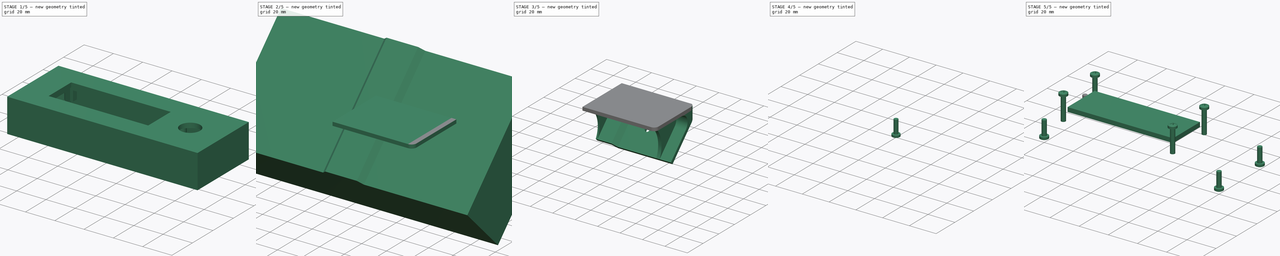
[diagram: build sequence overview — one tinted view per stage of 5, left to right]
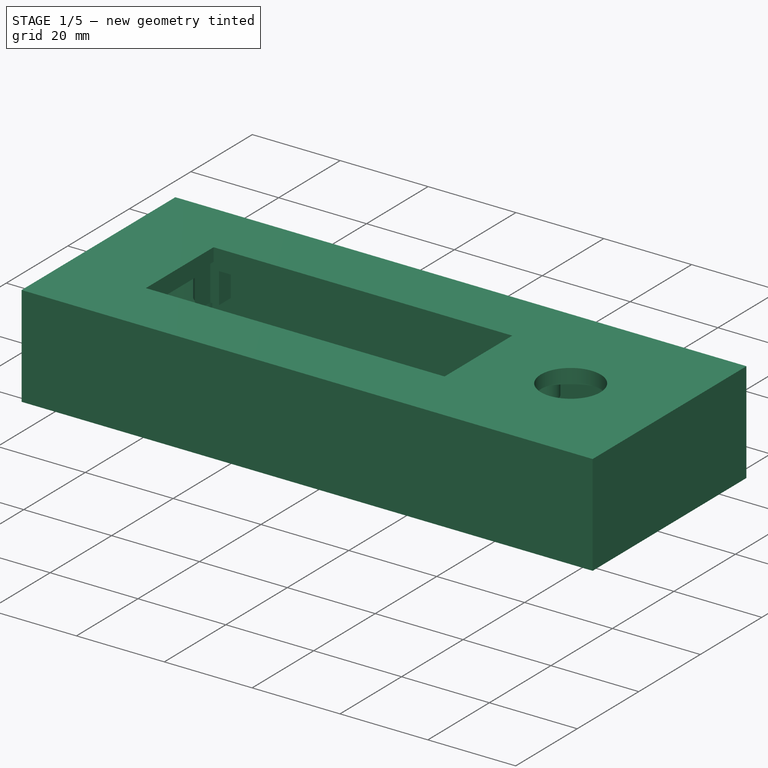
[diagram: stage 1 of 5 — iso view after this stage's code; geometry added in this stage tinted green]
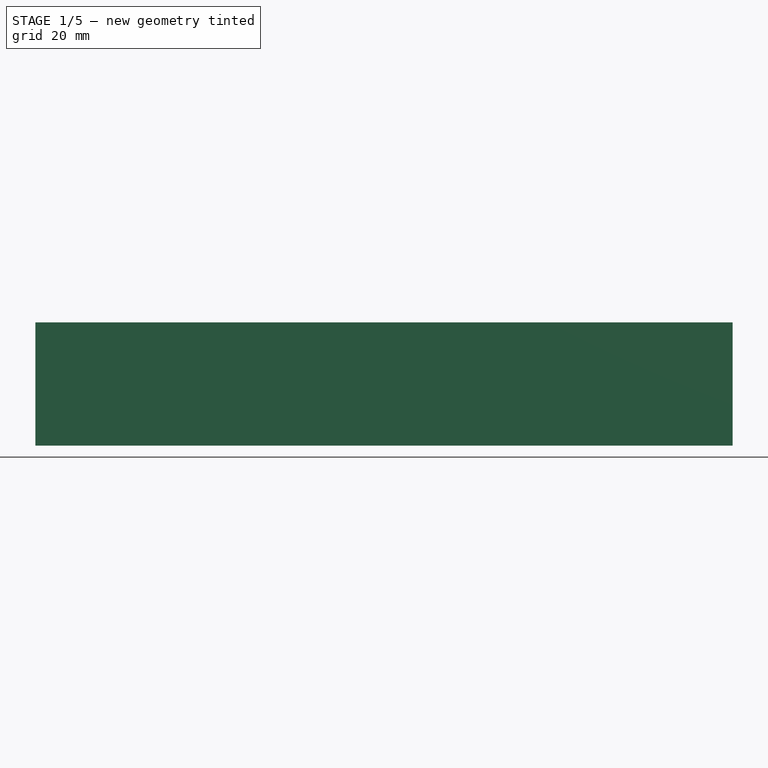
[diagram: stage 1 of 5 — front view after this stage's code; geometry added in this stage tinted green]
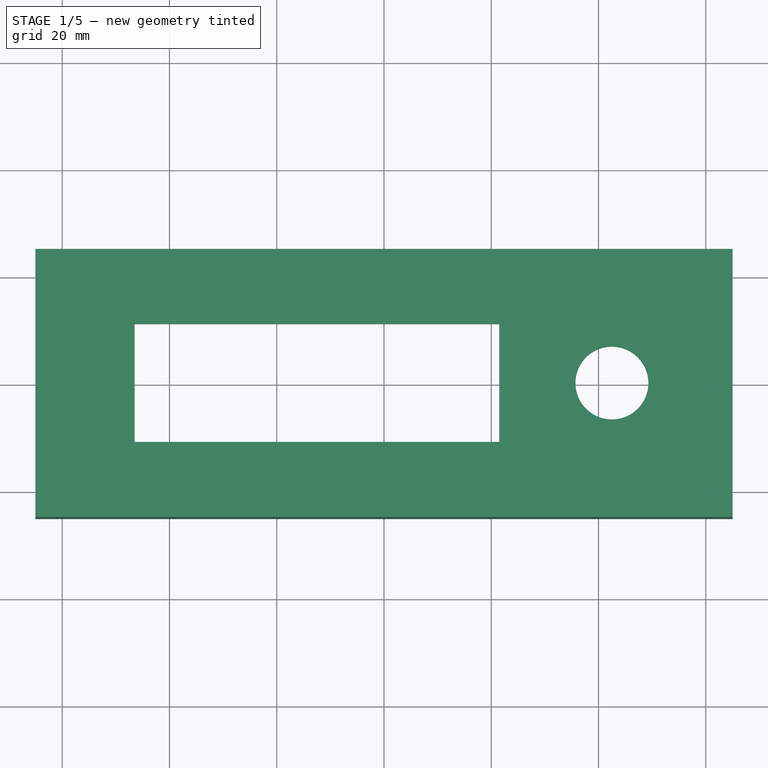
[diagram: stage 1 of 5 — top view after this stage's code; geometry added in this stage tinted green]
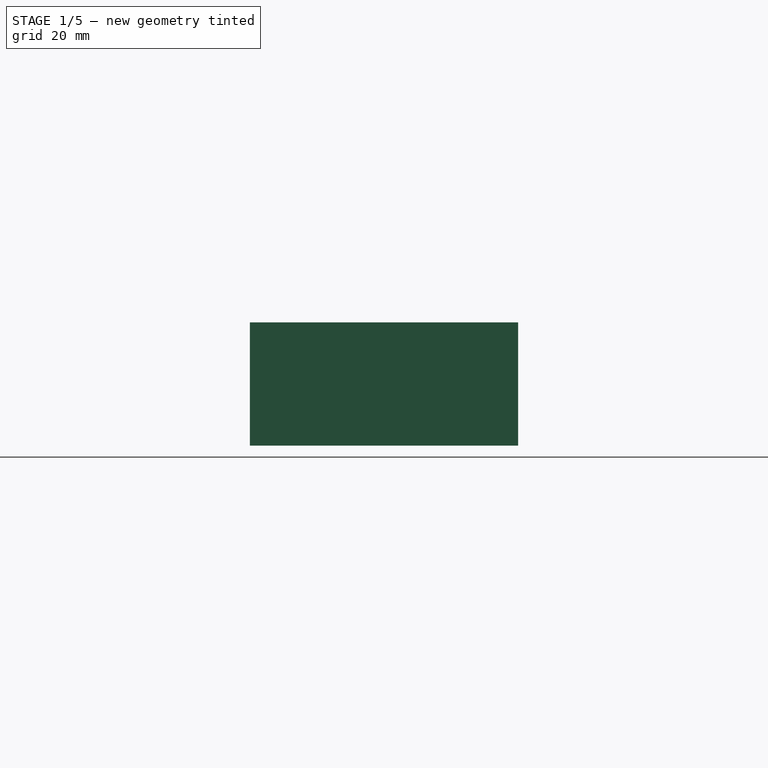
[diagram: stage 1 of 5 — right view after this stage's code; geometry added in this stage tinted green]
FCSTD DOCUMENT  (FreeCAD 0.21R33668 +26 (Git))
Label: Dashboard
License: All rights reserved
LicenseURL: http://en.wikipedia.org/wiki/All_rights_reserved
objects: Sketcher::SketchObject×24, PartDesign::Pad×10, PartDesign::Pocket×10, Part::FeaturePython×8, PartDesign::ShapeBinder×6, PartDesign::Body×5, Part::Feature×3, PartDesign::Hole×3, PartDesign::Mirrored×3, PartDesign::Fillet×3, App::DocumentObjectGroupPython×3, App::DocumentObjectGroup×2, App::TextDocument×1, PartDesign::Revolution×1, PartDesign::Chamfer×1
note: 105 computed .brp shape members not serialized (recipe doc carries the construction recipe); baked Part::Feature solids carry a one-line shape summary decoded from their .brp

FEATURE [Part::Feature] Part__Feature  label="LCD"
  Placement = pos=(-12.5,0,-2) rot=(0,0,1;0rad)
  shape: bbox 80 x 36 x 11 mm, 318 faces, 35 solids (baked)
FEATURE [App::TextDocument] Text_document  label="Sources"
  Text = The LCD Model was obtained from here on 11/10/2023: https://grabcad.com/library/16-2-lcd-dot-matrix-display-1
FEATURE [Sketcher::SketchObject] Sketch
  FullyConstrained = true
  MapMode = 5
  Support = -> [XY_Plane]
  sketch-geometry (4):
    g0: LineSegment StartX=65 StartY=25 StartZ=0 EndX=-65 EndY=25 EndZ=0
    g1: LineSegment StartX=-65 StartY=25 StartZ=0 EndX=-65 EndY=-25 EndZ=0
    g2: LineSegment StartX=-65 StartY=-25 StartZ=0 EndX=65 EndY=-25 EndZ=0
    g3: LineSegment StartX=65 StartY=-25 StartZ=0 EndX=65 EndY=25 EndZ=0
  constraints (10):
    c: Coincident(g0,g1)
    c: Coincident(g1,g2)
    c: Coincident(g2,g3)
    c: Coincident(g3,g0)
    c: Horizontal(g2)
    c: Vertical(g3)
    c: Symmetric(g0,g0,g-2)
    c: Symmetric(g0,g1,g-1)
    c: DistanceX(g0,g0) = 130
    c: DistanceY(g1,g1) = 50
FEATURE [Sketcher::SketchObject] Sketch001
  FullyConstrained = true
  MapMode = 5
  Placement = pos=(0,0,0) rot=(0.57735,0.57735,0.57735;2.0944rad)
  Support = -> [YZ_Plane001]
  sketch-geometry (7):
    g0: LineSegment StartX=0 StartY=-7.3 StartZ=0 EndX=6.8 EndY=-7.3 EndZ=0
    g1: LineSegment StartX=6.8 StartY=-7.3 StartZ=0 EndX=6.8 EndY=0 EndZ=0
    g2: LineSegment StartX=6.8 StartY=0 StartZ=0 EndX=8.75 EndY=0 EndZ=0
    g3: LineSegment StartX=8.75 StartY=0 StartZ=0 EndX=8.75 EndY=1.2 EndZ=0
    g4: ArcOfCircle CenterX=2.83395 CenterY=1.2 CenterZ=0 NormalX=0 NormalY=0 NormalZ=1 AngleXU=0 Radius=5.91605 StartAngle=0 EndAngle=1.3724
    g5: LineSegment StartX=4 StartY=7 StartZ=0 EndX=0 EndY=7 EndZ=0
    g6: LineSegment StartX=0 StartY=7 StartZ=0 EndX=0 EndY=-7.3 EndZ=0
  constraints (20):
    c: PointOnObject(g0,g-2)
    c: Horizontal(g0)
    c: Coincident(g0,g1)
    c: PointOnObject(g1,g-1)
    c: Vertical(g1)
    c: Coincident(g1,g2)
    c: PointOnObject(g2,g-1)
    c: Perpendicular(g2,g3) = 1.5708
    c: Tangent(g3,g4) = -1.5708
    c: Coincident(g4,g5)
    c: PointOnObject(g5,g-2)
    c: Horizontal(g5)
    c: Coincident(g5,g6)
    c: Coincident(g6,g0)
    c: DistanceX(g0,g0) = 6.8
    c: DistanceY(g1,g1) = 7.3
    c: DistanceX(g0,g2) = 8.75
    c: DistanceY(g3,g3) = 1.2
    c: DistanceY(g2,g4) = 7
    c: DistanceX(g5,g5) = 4
FEATURE [PartDesign::Revolution] Revolution
  Angle = 360
  Axis = (-2e-16,3e-16,1)
  Base = (0,0,0)
  Placement = pos=(0,0,0) rot=(0.57735,0.57735,0.57735;2.0944rad)
  Profile = -> Sketch001
  ReferenceAxis = -> Sketch001 [V_Axis]
  Reversed = true
FEATURE [PartDesign::Body] Body001  label="Button"
  Group = -> [Sketch001,Revolution]
  Origin = -> Origin001
  Placement = pos=(42.5,0,11) rot=(0,0,1;0rad)
  Tip = -> Revolution
FEATURE [App::DocumentObjectGroup] Group  label="Components"
  Group = -> [Part__Feature,Body001]
FEATURE [PartDesign::Pad] Pad001
  Direction = (0,0,1)
  Length = 11
  Length2 = 12
  Profile = -> Sketch
  ReferenceAxis = -> Sketch [N_Axis]
  Type = 4
FEATURE [PartDesign::ShapeBinder] ShapeBinder
  Placement = pos=(-12.5,0,-2) rot=(0,0,1;0rad)
  Support = -> [Part__Feature]
  TraceSupport = false
FEATURE [Sketcher::SketchObject] Sketch003
  FullyConstrained = true
  MapMode = 5
  Placement = pos=(-12.5,0,3) rot=(0,0,1;0rad)
  Support = -> [ShapeBinder]
  sketch-geometry (4):
    g0: LineSegment StartX=-34 StartY=11 StartZ=0 EndX=34 EndY=11 EndZ=0
    g1: LineSegment StartX=34 StartY=11 StartZ=0 EndX=34 EndY=-11 EndZ=0
    g2: LineSegment StartX=34 StartY=-11 StartZ=0 EndX=-34 EndY=-11 EndZ=0
    g3: LineSegment StartX=-34 StartY=-11 StartZ=0 EndX=-34 EndY=11 EndZ=0
  constraints (10):
    c: Coincident(g0,g1)
    c: Coincident(g1,g2)
    c: Coincident(g2,g3)
    c: Coincident(g3,g0)
    c: Horizontal(g2)
    c: Vertical(g1)
    c: Symmetric(g0,g2,g-1)
    c: Symmetric(g0,g0,g-2)
    c: DistanceY(g3,g3) = 22
    c: DistanceX(g2,g2) = 68
FEATURE [PartDesign::Pocket] Pocket
  BaseFeature = -> Pad001
  Direction = (0,0,-1)
  Length = 5
  Length2 = 5
  Midplane = true
  Profile = -> Sketch003
  ReferenceAxis = -> Sketch003 [N_Axis]
  Type = 1
FEATURE [Sketcher::SketchObject] Sketch005
  AttachmentOffset = pos=(0,0,5) rot=(0,0,1;0rad)
  FullyConstrained = true
  MapMode = 5
  Placement = pos=(-12.5,0,8) rot=(0,0,1;0rad)
  Support = -> [ShapeBinder]
  expr: Constraints[8] = Sketch003.Constraints[8] + 5 mm
  expr: Constraints[9] = Sketch003.Constraints[9] + 5 mm
  sketch-geometry (4):
    g0: LineSegment StartX=-36.5 StartY=13.5 StartZ=0 EndX=36.5 EndY=13.5 EndZ=0
    g1: LineSegment StartX=36.5 StartY=13.5 StartZ=0 EndX=36.5 EndY=-13.5 EndZ=0
    g2: LineSegment StartX=36.5 StartY=-13.5 StartZ=0 EndX=-36.5 EndY=-13.5 EndZ=0
    g3: LineSegment StartX=-36.5 StartY=-13.5 StartZ=0 EndX=-36.5 EndY=13.5 EndZ=0
  constraints (10):
    c: Coincident(g0,g1)
    c: Coincident(g1,g2)
    c: Coincident(g2,g3)
    c: Coincident(g3,g0)
    c: Horizontal(g2)
    c: Vertical(g1)
    c: Symmetric(g0,g2,g-1)
    c: Symmetric(g0,g0,g-2)
    c: DistanceY(g3,g3) = 27
    c: DistanceX(g2,g2) = 73
FEATURE [PartDesign::Pocket] Pocket001
  BaseFeature = -> Pocket
  Direction = (0,0,-1)
  Length = 5
  Length2 = 5
  Profile = -> Sketch005
  ReferenceAxis = -> Sketch005 [N_Axis]
  Type = 1
FEATURE [PartDesign::Body] Body002  label="Acryllic"
  Group = -> [ShapeBinder001,Sketch006,Pad]
  Origin = -> Origin002
  Placement = pos=(0,0,5) rot=(0,0,1;0rad)
  Tip = -> Pad
FEATURE [Sketcher::SketchObject] Sketch007
  FullyConstrained = true
  MapMode = 5
  Placement = pos=(0,0,-12) rot=(1,0,0;3.14159rad)
  Support = -> [Pocket001]
  expr: Constraints[8] = Sketch.Constraints[8] - 6 mm
  expr: Constraints[9] = Sketch.Constraints[9] - 6 mm
  sketch-geometry (12):
    g0: LineSegment StartX=62 StartY=22 StartZ=0 EndX=-62 EndY=22 EndZ=0
    g1: LineSegment StartX=-62 StartY=22 StartZ=0 EndX=-62 EndY=-22 EndZ=0
    g2: LineSegment StartX=-62 StartY=-22 StartZ=0 EndX=62 EndY=-22 EndZ=0
    g3: LineSegment StartX=62 StartY=-22 StartZ=0 EndX=62 EndY=22 EndZ=0
    g4: LineSegment StartX=62 StartY=14.5 StartZ=0 EndX=62 EndY=-14.5 EndZ=0
    g5: ArcOfCircle CenterX=62 CenterY=-22 CenterZ=0 NormalX=0 NormalY=0 NormalZ=1 AngleXU=0 Radius=7.5 StartAngle=1.5708 EndAngle=3.14159
    g6: LineSegment StartX=54.5 StartY=-22 StartZ=0 EndX=-54.5 EndY=-22 EndZ=0
    g7: ArcOfCircle CenterX=-62 CenterY=-22 CenterZ=0 NormalX=0 NormalY=0 NormalZ=1 AngleXU=0 Radius=7.5 StartAngle=2e-16 EndAngle=1.5708
    g8: LineSegment StartX=-62 StartY=-14.5 StartZ=0 EndX=-62 EndY=14.5 EndZ=0
    g9: ArcOfCircle CenterX=-62 CenterY=22 CenterZ=0 NormalX=0 NormalY=0 NormalZ=1 AngleXU=0 Radius=7.5 StartAngle=4.71239 EndAngle=6.28319
    g10: LineSegment StartX=-54.5 StartY=22 StartZ=0 EndX=54.5 EndY=22 EndZ=0
    g11: ArcOfCircle CenterX=62 CenterY=22 CenterZ=0 NormalX=0 NormalY=0 NormalZ=1 AngleXU=0 Radius=7.5 StartAngle=3.14159 EndAngle=4.71239
  constraints (28):
    c: Coincident(g0,g1)
    c: Coincident(g1,g2)
    c: Coincident(g2,g3)
    c: Coincident(g3,g0)
    c: Horizontal(g2)
    c: Vertical(g3)
    c: Symmetric(g0,g0,g-2)
    c: Symmetric(g0,g1,g-1)
    c: DistanceX(g0,g0) = 124
    c: DistanceY(g1,g1) = 44
    c: PointOnObject(g9,g0)
    c: PointOnObject(g4,g3)
    c: Perpendicular(g4,g5) = 4.71239
    c: Coincident(g5,g6)
    c: Perpendicular(g6,g7) = 4.71239
    c: Coincident(g7,g8)
    c: Perpendicular(g8,g9) = 4.71239
    c: Coincident(g9,g0)
    c: Coincident(g1,g7)
    c: Coincident(g5,g2)
    c: Coincident(g10,g9)
    c: Coincident(g11,g0)
    c: Coincident(g11,g4)
    c: Coincident(g11,g10)
    c: Symmetric(g9,g10,g-2)
    c: Symmetric(g8,g7,g-1)
    c: Symmetric(g6,g5,g-2)
    c: Diameter(g11) = 15
FEATURE [PartDesign::Pocket] Pocket002
  BaseFeature = -> Pocket001
  Direction = (0,0,1)
  Length = 0
  Length2 = 5
  Offset = -3
  Profile = -> Sketch007
  ReferenceAxis = -> Sketch007 [N_Axis]
  Type = 3
  UpToFace = -> Pocket001 [Face15]
FEATURE [Sketcher::SketchObject] Sketch008
  FullyConstrained = true
  MapMode = 5
  Support = -> [XY_Plane]
  expr: Constraints[1] = <<Button>>.Placement.Base.x
  sketch-geometry (1):
    g0: Circle CenterX=42.5 CenterY=0 CenterZ=0 NormalX=0 NormalY=0 NormalZ=1 AngleXU=0 Radius=6.8
  constraints (3):
    c: PointOnObject(g0,g-1)
    c: DistanceX(g-1,g0) = 42.5
    c: Diameter(g0) = 13.6
FEATURE [PartDesign::Pocket] Pocket003
  BaseFeature = -> Pocket002
  Direction = (0,0,-1)
  Length = 5
  Length2 = 5
  Midplane = true
  Profile = -> Sketch008
  ReferenceAxis = -> Sketch008 [N_Axis]
  Type = 1
FEATURE [Sketcher::SketchObject] Sketch009
  FullyConstrained = true
  MapMode = 5
  Support = -> [XY_Plane]
  expr: Constraints[1] = Sketch008.Constraints[1]
  sketch-geometry (1):
    g0: Circle CenterX=42.5 CenterY=0 CenterZ=0 NormalX=0 NormalY=0 NormalZ=1 AngleXU=0 Radius=12.5
  constraints (3):
    c: PointOnObject(g0,g-1)
    c: DistanceX(g-1,g0) = 42.5
    c: Diameter(g0) = 25
FEATURE [PartDesign::Pocket] Pocket004
  BaseFeature = -> Pocket003
  Direction = (0,0,-1)
  Length = 0
  Length2 = 5
  Offset = -3
  Profile = -> Sketch009
  ReferenceAxis = -> Sketch009 [N_Axis]
  Reversed = true
  Type = 3
  UpToFace = -> Pocket003 [Face5]
FEATURE [Sketcher::SketchObject] Sketch010
  AttachmentOffset = pos=(0,0,3) rot=(0,0,1;0rad)
  ExternalGeometry = -> [ShapeBinder,Sketch005]
  FullyConstrained = true
  MapMode = 5
  Placement = pos=(0,0,5) rot=(1,0,0;3.14159rad)
  Support = -> [ShapeBinder001]
  sketch-geometry (30):
    g0: Circle CenterX=-50 CenterY=15.5 CenterZ=0 NormalX=0 NormalY=0 NormalZ=1 AngleXU=0 Radius=2
    g1: Circle CenterX=-50 CenterY=-15.5 CenterZ=0 NormalX=0 NormalY=0 NormalZ=1 AngleXU=0 Radius=2
    g2: Circle CenterX=25 CenterY=15.5 CenterZ=0 NormalX=0 NormalY=0 NormalZ=1 AngleXU=0 Radius=2
    g3: Circle CenterX=25 CenterY=-15.5 CenterZ=0 NormalX=0 NormalY=0 NormalZ=1 AngleXU=0 Radius=2
    g4: LineSegment StartX=25 StartY=15.5 StartZ=0 EndX=-50 EndY=15.5 EndZ=0
    g5: LineSegment StartX=-50 StartY=15.5 StartZ=0 EndX=-50 EndY=-15.5 EndZ=0
    g6: LineSegment StartX=-50 StartY=-15.5 StartZ=0 EndX=25 EndY=-15.5 EndZ=0
    g7: LineSegment StartX=25 StartY=-15.5 StartZ=0 EndX=25 EndY=15.5 EndZ=0
    g8: LineSegment StartX=-47.3 StartY=11.8 StartZ=0 EndX=-50 EndY=11.8 EndZ=0
    g9: LineSegment StartX=22.3 StartY=11.8 StartZ=0 EndX=25 EndY=11.8 EndZ=0
    g10: ArcOfCircle CenterX=-50 CenterY=15.5 CenterZ=0 NormalX=0 NormalY=0 NormalZ=1 AngleXU=0 Radius=3.5 StartAngle=0.0869018 EndAngle=4.28427
    g11: ArcOfCircle CenterX=-53.1944 CenterY=8.5 CenterZ=0 NormalX=0 NormalY=0 NormalZ=1 AngleXU=0 Radius=4.19444 StartAngle=0 EndAngle=1.14267
    g12: ArcOfCircle CenterX=-50 CenterY=-15.5 CenterZ=0 NormalX=0 NormalY=0 NormalZ=1 AngleXU=0 Radius=3.5 StartAngle=1.99892 EndAngle=5.74209
    g13: ArcOfCircle CenterX=-53.1944 CenterY=-8.5 CenterZ=0 NormalX=0 NormalY=0 NormalZ=1 AngleXU=0 Radius=4.19444 StartAngle=5.14051 EndAngle=6.28319
    g14: ArcOfCircle CenterX=25 CenterY=15.5 CenterZ=0 NormalX=0 NormalY=0 NormalZ=1 AngleXU=0 Radius=3.5 StartAngle=5.14051 EndAngle=9.33788
    g15: ArcOfCircle CenterX=28.1944 CenterY=8.5 CenterZ=0 NormalX=0 NormalY=0 NormalZ=1 AngleXU=0 Radius=4.19444 StartAngle=1.99892 EndAngle=3.14159
    g16: ArcOfCircle CenterX=25 CenterY=-15.5 CenterZ=0 NormalX=0 NormalY=0 NormalZ=1 AngleXU=0 Radius=3.5 StartAngle=3.22849 EndAngle=7.42586
    g17: ArcOfCircle CenterX=28.1944 CenterY=-8.5 CenterZ=0 NormalX=0 NormalY=0 NormalZ=1 AngleXU=0 Radius=4.19444 StartAngle=3.14159 EndAngle=4.28427
    g18: LineSegment StartX=-47 StartY=-17.3028 StartZ=0 EndX=-47 EndY=-13.5 EndZ=0
    g19: LineSegment StartX=-47 StartY=-13.5 StartZ=0 EndX=-49 EndY=-13.5 EndZ=0
    g20: LineSegment StartX=-49 StartY=-13.5 StartZ=0 EndX=-49 EndY=-8.5 EndZ=0
    g21: LineSegment StartX=-49 StartY=8.5 StartZ=0 EndX=-49 EndY=13.5 EndZ=0
    g22: LineSegment StartX=-49 StartY=13.5 StartZ=0 EndX=-44 EndY=13.5 EndZ=0
    g23: LineSegment StartX=24 StartY=8.5 StartZ=0 EndX=24 EndY=13.5 EndZ=0
    g24: LineSegment StartX=24 StartY=13.5 StartZ=0 EndX=19 EndY=13.5 EndZ=0
    g25: LineSegment StartX=24 StartY=-8.5 StartZ=0 EndX=24 EndY=-13.5 EndZ=0
    g26: LineSegment StartX=24 StartY=-13.5 StartZ=0 EndX=19 EndY=-13.5 EndZ=0
    g27: ArcOfCircle CenterX=19 CenterY=-16.0227 CenterZ=0 NormalX=0 NormalY=0 NormalZ=1 AngleXU=0 Radius=2.52273 StartAngle=0.0869018 EndAngle=1.5708
    g28: ArcOfCircle CenterX=-44 CenterY=16.0227 CenterZ=0 NormalX=0 NormalY=0 NormalZ=1 AngleXU=0 Radius=2.52273 StartAngle=3.22849 EndAngle=4.71239
    g29: ArcOfCircle CenterX=19 CenterY=16.0227 CenterZ=0 NormalX=0 NormalY=0 NormalZ=1 AngleXU=0 Radius=2.52273 StartAngle=4.71239 EndAngle=6.19628
  constraints (77):
    c: Coincident(g4,g5)
    c: Coincident(g5,g6)
    c: Coincident(g6,g7)
    c: Coincident(g7,g4)
    c: Horizontal(g4)
    c: Horizontal(g6)
    c: Vertical(g7)
    c: Coincident(g4,g2)
    c: Coincident(g5,g1)
    c: Coincident(g0,g4)
    c: Coincident(g3,g6)
    c: Equal(g0,g1)
    c: Equal(g1,g2)
    c: Equal(g1,g3)
    c: Diameter(g1) = 4
    c: Symmetric(g1,g0,g-1)
    c: DistanceY(g5,g5) = 31
    c: DistanceX(g4,g4) = 75
    c: Coincident(g8,g-3)
    c: PointOnObject(g8,g5)
    c: Horizontal(g8)
    c: Coincident(g9,g-3)
    c: PointOnObject(g9,g7)
    c: Horizontal(g9)
    c: Equal(g9,g8)
    c: Coincident(g10,g0)
    c: Coincident(g11,g10)
    c: PointOnObject(g11,g-5)
    c: Coincident(g12,g1)
    c: Coincident(g13,g12)
    c: Symmetric(g11,g13,g-1)
    c: Coincident(g14,g2)
    c: Coincident(g15,g14)
    c: Coincident(g16,g3)
    c: Coincident(g17,g16)
    c: PointOnObject(g17,g-6)
    c: Tangent(g11,g10,g10) = 1.5708
    c: Tangent(g13,g12,g12) = 1.5708
    c: Equal(g10,g12)
    c: Equal(g12,g16)
    c: Equal(g16,g14)
    c: Tangent(g14,g15,g14) = 1.5708
    c: Tangent(g17,g16,g16) = 1.5708
    c: Symmetric(g15,g17,g-1)
    c: Equal(g15,g11)
    c: DistanceY(g17,g15) = 17
    c: Coincident(g18,g12)
    c: PointOnObject(g18,g-7)
    c: Coincident(g18,g19)
    c: Coincident(g19,g-7)
    c: Coincident(g19,g20)
    c: Coincident(g21,g22)
    c: PointOnObject(g22,g-4)
    c: Coincident(g23,g24)
    c: PointOnObject(g24,g-4)
    c: Coincident(g25,g26)
    c: PointOnObject(g26,g-7)
    c: Vertical(g18)
    c: DistanceX(g12,g12) = 3
    c: Coincident(g27,g16)
    c: Tangent(g27,g26) = -1.5708
    c: Tangent(g27,g16,g16) = 1.5708
    c: Equal(g26,g25)
    c: Coincident(g25,g-7)
    c: Tangent(g29,g24) = 1.5708
    c: Tangent(g15,g23) = 1.5708
    c: Coincident(g23,g-6)
    c: Tangent(g17,g25) = -1.5708
    c: Equal(g24,g23)
    c: Tangent(g29,g14) = 1.5708
    c: Tangent(g28,g22) = -1.5708
    c: Tangent(g20,g13) = -1.5708
    c: Tangent(g11,g21) = -1.5708
    c: Coincident(g-5,g21)
    c: Equal(g22,g21)
    c: Tangent(g28,g10) = 1.5708
    c: Diameter(g14) = 7
FEATURE [PartDesign::ShapeBinder] ShapeBinder002
  Placement = pos=(-12.5,0,-2) rot=(0,0,1;0rad)
  Support = -> [Part__Feature]
  TraceSupport = false
FEATURE [PartDesign::Pad] Pad002
  BaseFeature = -> Pocket004
  Direction = (0,0,-1)
  Length = 7
  Length2 = 10
  Profile = -> Sketch010
  ReferenceAxis = -> Sketch010 [N_Axis]
  Type = 0
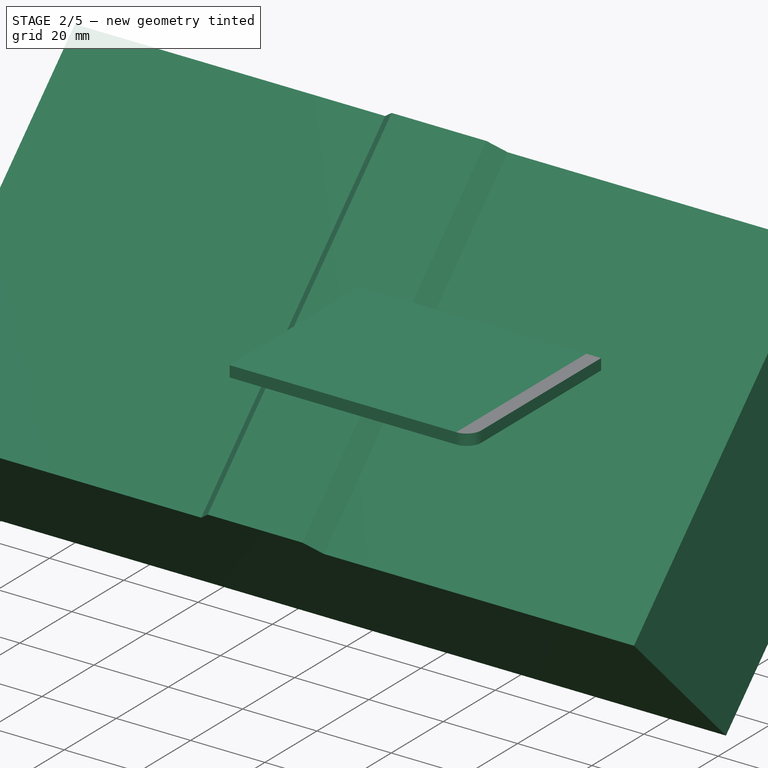
[diagram: stage 2 of 5 — iso view after this stage's code; geometry added in this stage tinted green]
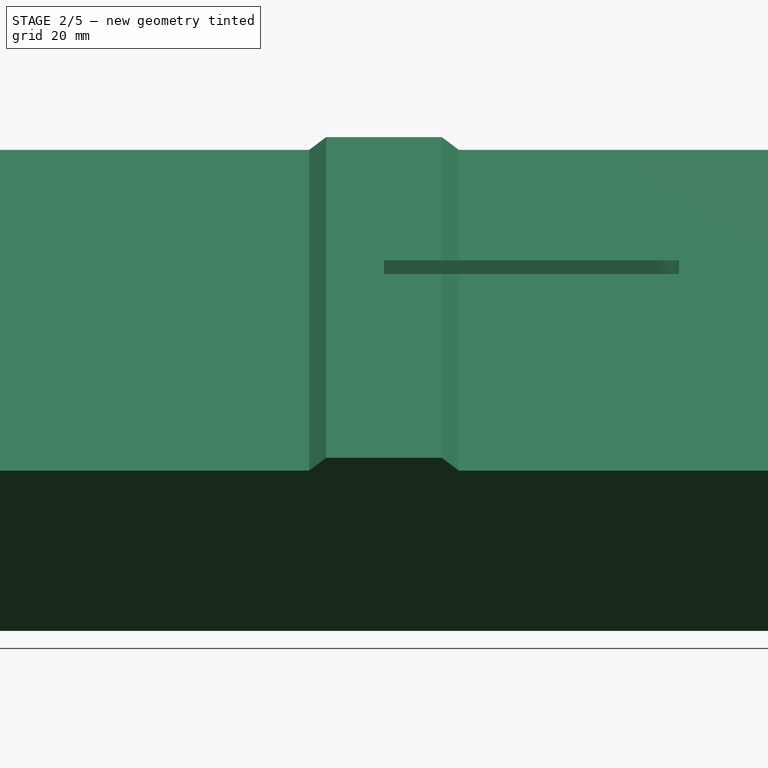
[diagram: stage 2 of 5 — front view after this stage's code; geometry added in this stage tinted green]
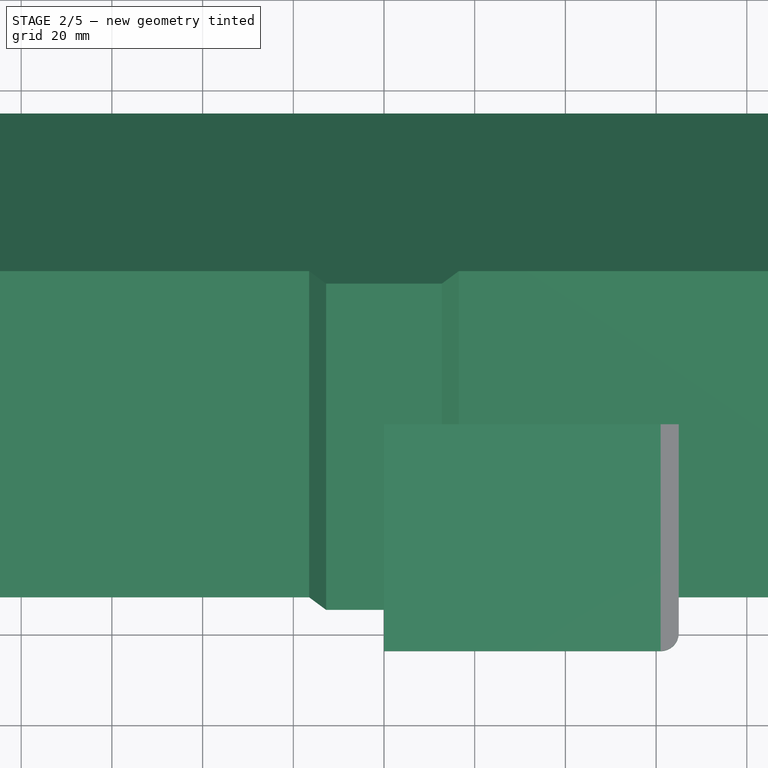
[diagram: stage 2 of 5 — top view after this stage's code; geometry added in this stage tinted green]
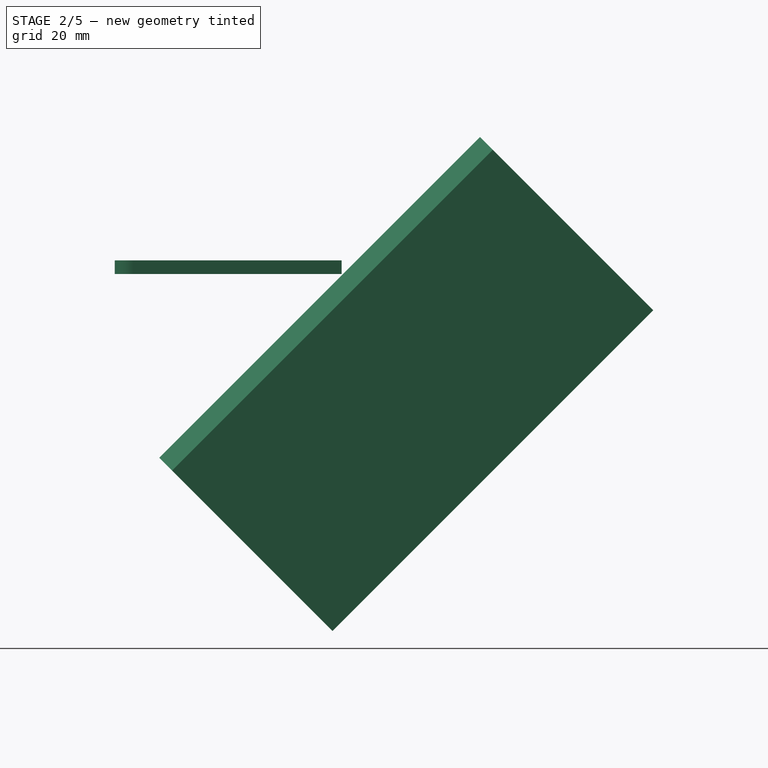
[diagram: stage 2 of 5 — right view after this stage's code; geometry added in this stage tinted green]
FEATURE [Sketcher::SketchObject] Sketch011
  AttachmentOffset = pos=(0,0,-3) rot=(0,0,1;0rad)
  ExternalGeometry = -> [Pad002]
  FullyConstrained = true
  MapMode = 5
  Placement = pos=(0,0,-3) rot=(0,0,1;0rad)
  Support = -> [XY_Plane]
  sketch-geometry (4):
    g0: Circle CenterX=-50 CenterY=15.5 CenterZ=0 NormalX=0 NormalY=0 NormalZ=1 AngleXU=0 Radius=1.5
    g1: Circle CenterX=25 CenterY=15.5 CenterZ=0 NormalX=0 NormalY=0 NormalZ=1 AngleXU=0 Radius=1.5
    g2: Circle CenterX=25 CenterY=-15.5 CenterZ=0 NormalX=0 NormalY=0 NormalZ=1 AngleXU=0 Radius=1.5
    g3: Circle CenterX=-50 CenterY=-15.5 CenterZ=0 NormalX=0 NormalY=0 NormalZ=1 AngleXU=0 Radius=1.5
  constraints (8):
    c: Equal(g3,g2)
    c: Equal(g2,g1)
    c: Equal(g1,g0)
    c: Diameter(g0) = 3
    c: Coincident(g0,g-3)
    c: Coincident(g1,g-4)
    c: Coincident(g3,g-6)
    c: Coincident(g2,g-5)
FEATURE [PartDesign::Hole] Hole
  BaseFeature = -> Pad002
  CustomThreadClearance = 0
  Depth = 284.533
  DepthType = 1
  Diameter = 3.6
  DrillForDepth = false
  DrillPoint = 1
  DrillPointAngle = 118
  HoleCutCountersinkAngle = 90
  HoleCutCustomValues = false
  HoleCutDepth = 0
  HoleCutDiameter = 6.1
  HoleCutType = 0
  ModelThread = false
  Profile = -> Sketch011
  Reversed = true
  Tapered = false
  TaperedAngle = 90
  ThreadClass = 0
  ThreadDepth = 284.533
  ThreadDepthType = 0
  ThreadDirection = 0
  ThreadFit = 2
  ThreadSize = 9
  ThreadType = 1
  Threaded = false
  UseCustomThreadClearance = false
FEATURE [Sketcher::SketchObject] Sketch012
  FullyConstrained = true
  MapMode = 5
  Placement = pos=(0,0,-12) rot=(1,0,0;3.14159rad)
  Support = -> [Hole]
  sketch-geometry (2):
    g0: Circle CenterX=-60 CenterY=20 CenterZ=0 NormalX=0 NormalY=0 NormalZ=1 AngleXU=0 Radius=1.5
    g1: Circle CenterX=60 CenterY=20 CenterZ=0 NormalX=0 NormalY=0 NormalZ=1 AngleXU=0 Radius=1.5
  constraints (5):
    c: Diameter(g0) = 3
    c: DistanceX(g0) = -60
    c: DistanceY(g0) = 20
    c: Symmetric(g1,g0,g-2)
    c: Equal(g0,g1)
FEATURE [PartDesign::Hole] Hole001
  BaseFeature = -> Hole
  CustomThreadClearance = 0
  Depth = 16
  DepthType = 0
  Diameter = 3.6
  DrillForDepth = false
  DrillPoint = 1
  DrillPointAngle = 118
  HoleCutCountersinkAngle = 90
  HoleCutCustomValues = false
  HoleCutDepth = 0
  HoleCutDiameter = 6.1
  HoleCutType = 0
  ModelThread = false
  Profile = -> Sketch012
  Tapered = false
  TaperedAngle = 90
  ThreadClass = 0
  ThreadDepth = 16
  ThreadDepthType = 0
  ThreadDirection = 0
  ThreadFit = 2
  ThreadSize = 9
  ThreadType = 1
  Threaded = false
  UseCustomThreadClearance = false
FEATURE [Sketcher::SketchObject] Sketch013
  AttachmentOffset = pos=(0,0,-4) rot=(0,0,1;0rad)
  ExternalGeometry = -> [Hole001]
  FullyConstrained = true
  MapMode = 5
  Placement = pos=(0,0,-8) rot=(1,0,0;3.14159rad)
  Support = -> [Hole001]
  sketch-geometry (24):
    g0: LineSegment StartX=-63.1788 StartY=19.1483 StartZ=0 EndX=-60.8517 EndY=16.8212 EndZ=0
    g1: LineSegment StartX=-60.8517 StartY=16.8212 StartZ=0 EndX=-57.673 EndY=17.673 EndZ=0
    g2: LineSegment StartX=-57.673 StartY=17.673 StartZ=0 EndX=-56.8212 EndY=20.8517 EndZ=0
    g3: LineSegment StartX=-56.8212 StartY=20.8517 StartZ=0 EndX=-59.1483 EndY=23.1788 EndZ=0
    g4: LineSegment StartX=-59.1483 StartY=23.1788 StartZ=0 EndX=-62.327 EndY=22.327 EndZ=0
    g5: LineSegment StartX=-62.327 StartY=22.327 StartZ=0 EndX=-63.1788 EndY=19.1483 EndZ=0
    g6: Circle CenterX=-60 CenterY=20 CenterZ=0 NormalX=0 NormalY=0 NormalZ=1 AngleXU=0 Radius=3.2909
    g7: LineSegment StartX=-62.327 StartY=22.327 StartZ=0 EndX=-57.673 EndY=17.673 EndZ=0
    g8: LineSegment StartX=-60.8517 StartY=16.8212 StartZ=0 EndX=-58.0048 EndY=13.9743 EndZ=0
    g9: LineSegment StartX=-56.8212 StartY=20.8517 StartZ=0 EndX=-53.9743 EndY=18.0048 EndZ=0
    g10: LineSegment StartX=-53.9743 StartY=18.0048 StartZ=0 EndX=-58.0048 EndY=13.9743 EndZ=0
    g11: GeomPoint X=-56.6967 Y=16.6967 Z=0
    g12: LineSegment StartX=63.1788 StartY=19.1483 StartZ=0 EndX=60.8517 EndY=16.8212 EndZ=0
    g13: LineSegment StartX=60.8517 StartY=16.8212 StartZ=0 EndX=57.673 EndY=17.673 EndZ=0
    g14: LineSegment StartX=57.673 StartY=17.673 StartZ=0 EndX=56.8212 EndY=20.8517 EndZ=0
    g15: LineSegment StartX=56.8212 StartY=20.8517 StartZ=0 EndX=59.1483 EndY=23.1788 EndZ=0
    g16: LineSegment StartX=59.1483 StartY=23.1788 StartZ=0 EndX=62.327 EndY=22.327 EndZ=0
    g17: LineSegment StartX=62.327 StartY=22.327 StartZ=0 EndX=63.1788 EndY=19.1483 EndZ=0
    g18: Circle CenterX=60 CenterY=20 CenterZ=0 NormalX=0 NormalY=0 NormalZ=1 AngleXU=0 Radius=3.2909
    g19: LineSegment StartX=62.327 StartY=22.327 StartZ=0 EndX=57.673 EndY=17.673 EndZ=0
    g20: LineSegment StartX=60.8517 StartY=16.8212 StartZ=0 EndX=58.0048 EndY=13.9743 EndZ=0
    g21: LineSegment StartX=56.8212 StartY=20.8517 StartZ=0 EndX=53.9743 EndY=18.0048 EndZ=0
    g22: LineSegment StartX=53.9743 StartY=18.0048 StartZ=0 EndX=58.0048 EndY=13.9743 EndZ=0
    g23: GeomPoint X=56.6967 Y=16.6967 Z=0
  constraints (54):
    c: Coincident(g0,g1)
    c: Coincident(g1,g2)
    c: Coincident(g2,g3)
    c: Coincident(g3,g4)
    c: Coincident(g4,g5)
    c: Coincident(g5,g0)
    c: Equal(g0, g1-g5) x5
    c: PointOnObject(g0,g6)
    c: PointOnObject(g1,g6)
    c: PointOnObject(g2,g6)
    c: PointOnObject(g3,g6)
    c: PointOnObject(g4,g6)
    c: PointOnObject(g5,g6)
    c: Coincident(g6,g-3)
    c: Distance(g3,g0) = 5.7
    c: Coincident(g7,g4)
    c: Coincident(g7,g1)
    c: Angle(g-1,g7) = 2.35619
    c: Coincident(g8,g0)
    c: Coincident(g9,g3)
    c: Coincident(g10,g9)
    c: Coincident(g10,g8)
    c: Perpendicular(g9,g10)
    c: Parallel(g8,g9)
    c: Parallel(g8,g0)
    c: PointOnObject(g11,g7)
    c: PointOnObject(g11,g-4)
    c: Distance(g11,g10) = 1
    c: Coincident(g12,g13)
    c: Coincident(g13,g14)
    c: Coincident(g14,g15)
    c: Coincident(g15,g16)
    c: Coincident(g16,g17)
    c: Coincident(g17,g12)
    c: Equal(g12, g13-g17) x5
    c: PointOnObject(g12,g18)
    c: PointOnObject(g13,g18)
    c: PointOnObject(g14,g18)
    c: PointOnObject(g15,g18)
    c: PointOnObject(g16,g18)
    c: PointOnObject(g17,g18)
    c: Coincident(g19,g16)
    c: Coincident(g19,g13)
    c: Coincident(g20,g12)
    c: Coincident(g21,g15)
    c: Coincident(g22,g21)
    c: Coincident(g22,g20)
    c: Perpendicular(g21,g22)
    c: Parallel(g20,g21)
    c: PointOnObject(g23,g19)
    c: Distance(g23,g22) = 1
    c: Symmetric(g18,g6,g-2)
    c: Symmetric(g15,g3,g-2)
    c: Symmetric(g21,g9,g-2)
FEATURE [PartDesign::Pocket] Pocket005
  BaseFeature = -> Hole001
  Direction = (0,0,1)
  Length = 3
  Length2 = 5
  Profile = -> Sketch013
  ReferenceAxis = -> Sketch013 [N_Axis]
  Type = 0
FEATURE [PartDesign::Mirrored] Mirrored
  BaseFeature = -> Pocket005
  MirrorPlane = -> Sketch012 [H_Axis]
  Originals = -> [Hole001,Pocket005]
FEATURE [PartDesign::Fillet] Fillet
  Base = -> Mirrored [Edge4,Edge10,Edge24,Edge7,Edge1,Edge5,Edge2,Edge8]
  BaseFeature = -> Mirrored
  Radius = 4
  SupportTransform = false
  UseAllEdges = false
FEATURE [PartDesign::Chamfer] Chamfer
  Angle = 45
  Base = -> Fillet [Edge91,Edge92,Edge90,Edge89]
  BaseFeature = -> Fillet
  ChamferType = 0
  FlipDirection = false
  Size = 2
  Size2 = 2
  SupportTransform = false
  UseAllEdges = false
FEATURE [PartDesign::Body] Body  label="TopPart"
  Group = -> [Sketch,Pad001,ShapeBinder,Sketch003,Pocket,Sketch005,Pocket001,Sketch007,Pocket002,Sketch008,Pocket003,Sketch009,Pocket004,Sketch010,ShapeBinder002,Pad002,Sketch011,Hole,Sketch012,Hole001,Sketch013,Pocket005,Mirrored,Fillet,Chamfer]
  Origin = -> Origin
  Tip = -> Chamfer
FEATURE [PartDesign::ShapeBinder] ShapeBinder003
  Support = -> [Chamfer]
  TraceSupport = false
FEATURE [Sketcher::SketchObject] Sketch014
  ExternalGeometry = -> [ShapeBinder003]
  FullyConstrained = true
  MapMode = 5
  Placement = pos=(0,0,-12) rot=(1,0,0;3.14159rad)
  Support = -> [ShapeBinder003]
  sketch-geometry (8):
    g0: LineSegment StartX=0 StartY=-25 StartZ=0 EndX=61 EndY=-25 EndZ=0
    g1: ArcOfCircle CenterX=61 CenterY=-21 CenterZ=0 NormalX=0 NormalY=0 NormalZ=1 AngleXU=0 Radius=4 StartAngle=4.71239 EndAngle=6.28319
    g2: LineSegment StartX=65 StartY=-21 StartZ=0 EndX=65 EndY=21 EndZ=0
    g3: ArcOfCircle CenterX=61 CenterY=21 CenterZ=0 NormalX=0 NormalY=0 NormalZ=1 AngleXU=0 Radius=4 StartAngle=1e-16 EndAngle=1.5708
    g4: LineSegment StartX=61 StartY=25 StartZ=0 EndX=0 EndY=25 EndZ=0
    g5: LineSegment StartX=0 StartY=25 StartZ=0 EndX=0 EndY=-25 EndZ=0
    g6: LineSegment StartX=65 StartY=-21 StartZ=0 EndX=65 EndY=-25 EndZ=0
    g7: LineSegment StartX=61 StartY=-25 StartZ=0 EndX=65 EndY=-25 EndZ=0
  constraints (19):
    c: Tangent(g0,g1) = -1.5708
    c: Coincident(g1,g-6)
    c: Tangent(g1,g2) = -1.5708
    c: Tangent(g2,g3) = -1.5708
    c: Coincident(g3,g-7)
    c: Tangent(g3,g4) = -1.5708
    c: Vertical(g2)
    c: Horizontal(g0)
    c: PointOnObject(g4,g-2)
    c: PointOnObject(g0,g-2)
    c: Horizontal(g4)
    c: PointOnObject(g0,g-4)
    c: Coincident(g5,g4)
    c: Coincident(g5,g0)
    c: Coincident(g6,g2)
    c: Coincident(g7,g0)
    c: Coincident(g7,g6)
    c: Horizontal(g7)
    c: Vertical(g6)
FEATURE [PartDesign::Pad] Pad003
  Direction = (0,0,-1)
  Length = 3
  Length2 = 10
  Profile = -> Sketch014
  ReferenceAxis = -> Sketch014 [N_Axis]
  Type = 0
FEATURE [Sketcher::SketchObject] Sketch016
  AttachmentOffset = pos=(0,-23,-23) rot=(1,0,0;0.785398rad)
  FullyConstrained = true
  MapMode = 5
  Placement = pos=(0,23,-23) rot=(1,0,0;2.35619rad)
  Support = -> [XZ_Plane004]
  sketch-geometry (8):
    g0: LineSegment StartX=-100 StartY=0 StartZ=0 EndX=-16.5 EndY=0 EndZ=0
    g1: LineSegment StartX=-16.5 StartY=0 StartZ=0 EndX=-12.75 EndY=4 EndZ=0
    g2: LineSegment StartX=-12.75 StartY=4 StartZ=0 EndX=12.75 EndY=4 EndZ=0
    g3: LineSegment StartX=12.75 StartY=4 StartZ=0 EndX=16.5 EndY=0 EndZ=0
    g4: LineSegment StartX=16.5 StartY=0 StartZ=0 EndX=100 EndY=0 EndZ=0
    g5: LineSegment StartX=100 StartY=0 StartZ=0 EndX=100 EndY=-50 EndZ=0
    g6: LineSegment StartX=100 StartY=-50 StartZ=0 EndX=-100 EndY=-50 EndZ=0
    g7: LineSegment StartX=-100 StartY=-50 StartZ=0 EndX=-100 EndY=0 EndZ=0
  constraints (21):
    c: PointOnObject(g0,g-1)
    c: PointOnObject(g0,g-1)
    c: Coincident(g0,g1)
    c: Coincident(g1,g2)
    c: Coincident(g2,g3)
    c: Coincident(g3,g4)
    c: PointOnObject(g4,g-1)
    c: Coincident(g4,g5)
    c: Vertical(g5)
    c: Coincident(g5,g6)
    c: Coincident(g6,g7)
    c: Coincident(g7,g0)
    c: Vertical(g7)
    c: Symmetric(g6,g5,g-2)
    c: Symmetric(g1,g2,g-2)
    c: Symmetric(g0,g3,g-2)
    c: DistanceY(g0,g1) = 4
    c: DistanceX(g2,g2) = 25.5
    c: DistanceX(g0,g3) = 33
    c: DistanceX(g6,g6) = 200
    c: DistanceY(g7,g7) = 50
FEATURE [PartDesign::Pad] Pad004
  Direction = (0,-0.707107,-0.707107)
  Length = 100
  Length2 = 10
  Midplane = true
  Placement = pos=(0,0,0) rot=(1,0,0;1.5708rad)
  Profile = -> Sketch016
  ReferenceAxis = -> Sketch016 [N_Axis]
  Type = 0
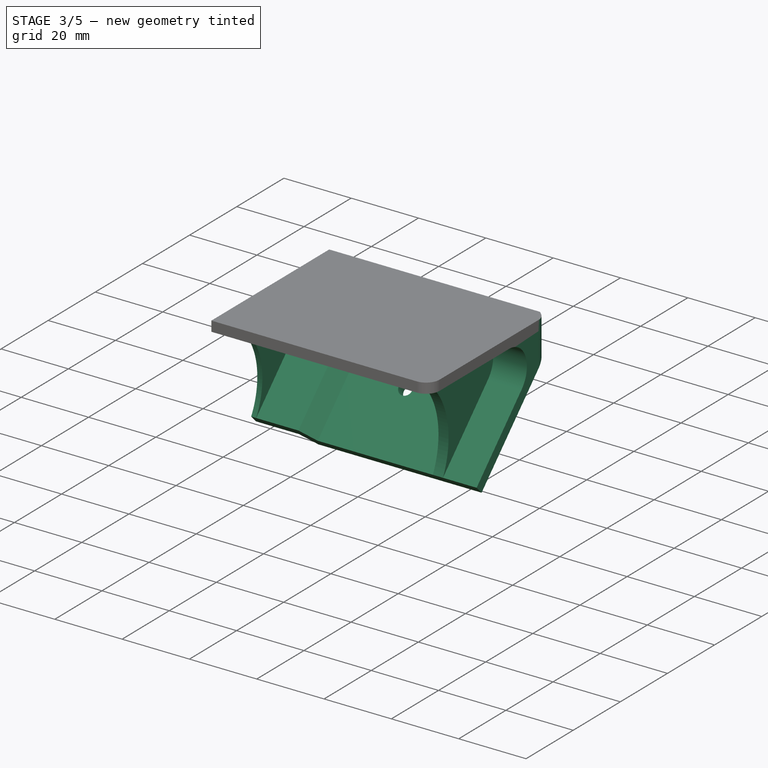
[diagram: stage 3 of 5 — iso view after this stage's code; geometry added in this stage tinted green]
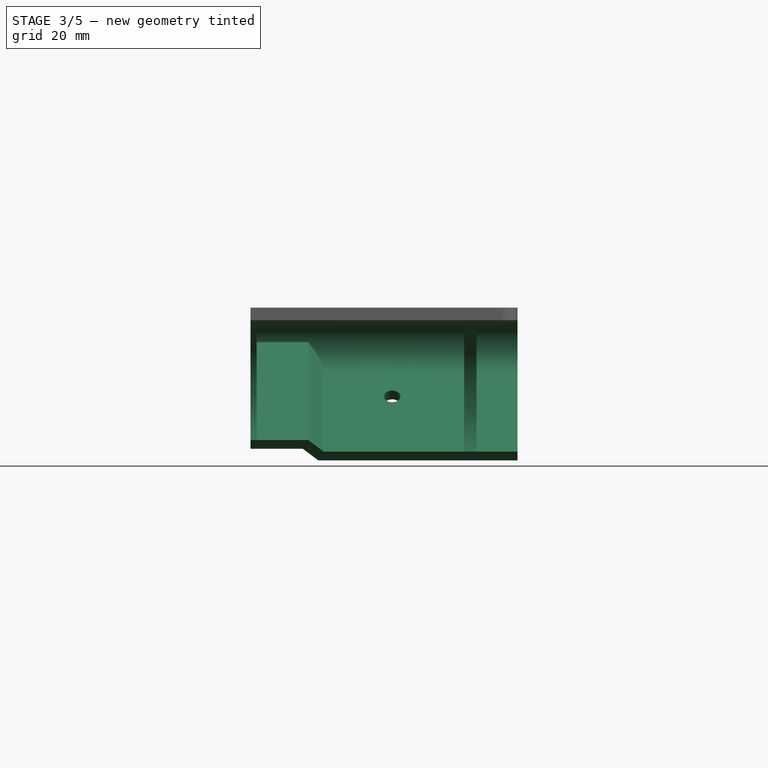
[diagram: stage 3 of 5 — front view after this stage's code; geometry added in this stage tinted green]
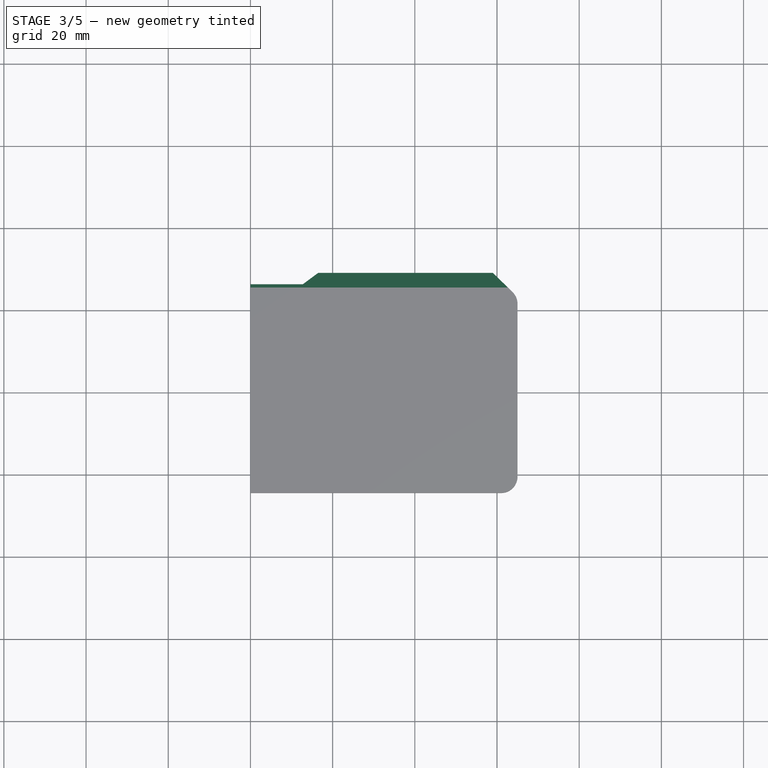
[diagram: stage 3 of 5 — top view after this stage's code; geometry added in this stage tinted green]
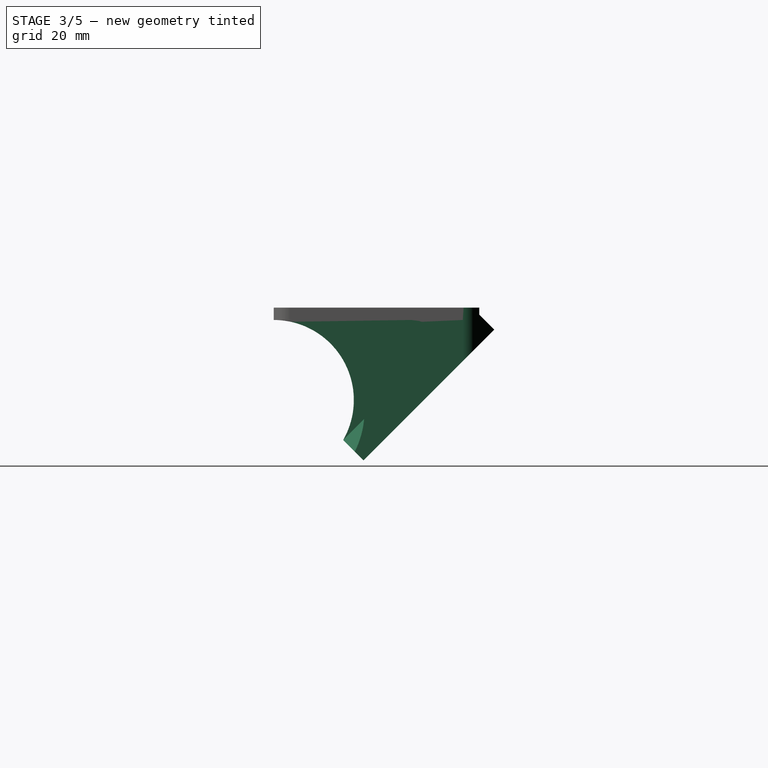
[diagram: stage 3 of 5 — right view after this stage's code; geometry added in this stage tinted green]
FEATURE [PartDesign::Body] Body004  label="TractorPanel"
  Group = -> [Sketch016,Pad004]
  Origin = -> Origin004
  Tip = -> Pad004
FEATURE [PartDesign::ShapeBinder] ShapeBinder004
  Placement = pos=(0,0,0) rot=(1,0,0;1.5708rad)
  Support = -> [Pad004]
  TraceSupport = false
FEATURE [PartDesign::ShapeBinder] ShapeBinder005
  Placement = pos=(0,-35.3553,-35.3553) rot=(0,0,1;0rad)
  Support = -> [Pad004]
  TraceSupport = false
FEATURE [Sketcher::SketchObject] Sketch017
  AttachmentOffset = pos=(0,0,-58) rot=(0,0,1;0rad)
  ExternalGeometry = -> [ShapeBinder005,ShapeBinder004]
  FullyConstrained = true
  MapMode = 5
  Placement = pos=(1e-16,5.65685,5.65685) rot=(1,0,0;2.35619rad)
  Support = -> [ShapeBinder005]
  sketch-geometry (11):
    g0: LineSegment StartX=14.0497 StartY=-25.5269 StartZ=0 EndX=17.7997 EndY=-29.5269 EndZ=0
    g1: LineSegment StartX=17.7997 StartY=-29.5269 StartZ=0 EndX=65 EndY=-29.5269 EndZ=0
    g2: LineSegment StartX=65 StartY=-29.5269 StartZ=0 EndX=65 EndY=-32.5269 EndZ=0
    g3: LineSegment StartX=65 StartY=-32.5269 StartZ=0 EndX=16.5 EndY=-32.5269 EndZ=0
    g4: LineSegment StartX=16.5 StartY=-32.5269 StartZ=0 EndX=12.75 EndY=-28.5269 EndZ=0
    g5: LineSegment StartX=14.0497 StartY=-25.5269 StartZ=0 EndX=0 EndY=-25.5269 EndZ=0
    g6: LineSegment StartX=0 StartY=-25.5269 StartZ=0 EndX=0 EndY=-28.5269 EndZ=0
    g7: LineSegment StartX=12.75 StartY=-28.5269 StartZ=0 EndX=0 EndY=-28.5269 EndZ=0
    g8: LineSegment StartX=12.75 StartY=-28.5269 StartZ=0 EndX=14.9386 EndY=-26.4751 EndZ=0
    g9: LineSegment StartX=0 StartY=-28.5269 StartZ=0 EndX=0 EndY=-32.5269 EndZ=0
    g10: LineSegment StartX=0 StartY=-32.5269 StartZ=0 EndX=16.5 EndY=-32.5269 EndZ=0
  constraints (29):
    c: Coincident(g0,g1)
    c: Horizontal(g1)
    c: Coincident(g1,g2)
    c: PointOnObject(g2,g-6)
    c: Coincident(g2,g3)
    c: Coincident(g3,g-6)
    c: Coincident(g3,g4)
    c: Coincident(g4,g-5)
    c: Coincident(g5,g0)
    c: PointOnObject(g5,g-2)
    c: Horizontal(g5)
    c: Coincident(g6,g5)
    c: PointOnObject(g6,g-4)
    c: Vertical(g6)
    c: Coincident(g7,g4)
    c: Coincident(g7,g6)
    c: Parallel(g0,g4)
    c: Equal(g6,g2)
    c: Coincident(g8,g4)
    c: PointOnObject(g8,g0)
    c: Perpendicular(g4,g8)
    c: Equal(g8,g6)
    c: DistanceY(g6,g6) = 3
    c: Vertical(g2)
    c: DistanceX(g-1,g1) = 65
    c: Tangent(g6,g9) = -1.5708
    c: Coincident(g9,g10)
    c: Coincident(g10,g3)
    c: Horizontal(g10)
FEATURE [PartDesign::Pad] Pad005
  BaseFeature = -> Pad003
  Direction = (0,-0.707107,-0.707107)
  Length = 45
  Length2 = 10
  Profile = -> Sketch017
  ReferenceAxis = -> Sketch017 [N_Axis]
  Type = 0
FEATURE [Sketcher::SketchObject] Sketch018
  ExternalGeometry = -> [Pad005]
  FullyConstrained = true
  MapMode = 5
  Placement = pos=(65,-1e-16,-1e-16) rot=(0.57735,0.57735,0.57735;2.0944rad)
  Support = -> [Pad005]
  sketch-geometry (5):
    g0: LineSegment StartX=26.5355 StartY=-15.2218 StartZ=0 EndX=23.7071 EndY=-12.3934 EndZ=0
    g1: LineSegment StartX=23.7071 StartY=-12.3934 StartZ=0 EndX=8.44369 EndY=-15 EndZ=0
    g2: LineSegment StartX=13.8076 StartY=-27.9497 StartZ=0 EndX=26.5355 EndY=-15.2218 EndZ=0
    g3: ArcOfCircle CenterX=8.44365 CenterY=-22.5858 CenterZ=0 NormalX=0 NormalY=0 NormalZ=1 AngleXU=0 Radius=7.58579 StartAngle=5.49779 EndAngle=7.85398
    g4: LineSegment StartX=8.44369 StartY=-15 StartZ=0 EndX=26.3137 EndY=-15 EndZ=0
  constraints (15):
    c: Coincident(g0,g1)
    c: Coincident(g2,g0)
    c: Angle(g-1,g0) = 2.35619
    c: Coincident(g0,g-3)
    c: PointOnObject(g2,g-3)
    c: Coincident(g3,g1)
    c: Coincident(g3,g2)
    c: Tangent(g3,g2,g2) = -1.5708
    c: Coincident(g4,g1)
    c: Horizontal(g4)
    c: Tangent(g4,g3)
    c: PointOnObject(g4,g0)
    c: PointOnObject(g-4,g4)
    c: Distance(g0) = 4
    c: Distance(g2) = 18
FEATURE [PartDesign::Pad] Pad006
  BaseFeature = -> Pad005
  Direction = (1,0,0)
  Length = 10
  Length2 = 10
  Profile = -> Sketch018
  ReferenceAxis = -> Sketch018 [N_Axis]
  Reversed = true
  Type = 1
FEATURE [Sketcher::SketchObject] Sketch019
  FullyConstrained = true
  MapMode = 5
  Placement = pos=(0,23,-23) rot=(0,-0.382683,0.92388;3.14159rad)
  Support = -> [ShapeBinder004]
  sketch-geometry (1):
    g0: Circle CenterX=-34.5 CenterY=18 CenterZ=0 NormalX=0 NormalY=0 NormalZ=1 AngleXU=0 Radius=2
  constraints (3):
    c: DistanceX(g-1,g0) = -34.5
    c: Diameter(g0) = 4
    c: DistanceY(g0,g-1) = -18
FEATURE [PartDesign::Pocket] Pocket006
  BaseFeature = -> Pad006
  Direction = (0,0.707107,-0.707107)
  Length = 5
  Length2 = 5
  Profile = -> Sketch019
  ReferenceAxis = -> Sketch019 [N_Axis]
  Reversed = true
  Type = 2
FEATURE [Sketcher::SketchObject] Sketch020
  ExternalGeometry = -> [Pocket006]
  FullyConstrained = true
  MapMode = 5
  Placement = pos=(0,0,0) rot=(0.57735,0.57735,0.57735;2.0944rad)
  Support = -> [YZ_Plane003]
  sketch-geometry (3):
    g0: LineSegment StartX=-8.1127 StartY=-44.2132 StartZ=0 EndX=21.1005 EndY=-15 EndZ=0
    g1: LineSegment StartX=21.1005 StartY=-15 StartZ=0 EndX=-25 EndY=-15 EndZ=0
    g2: ArcOfCircle CenterX=-25 CenterY=-34.4876 CenterZ=0 NormalX=0 NormalY=0 NormalZ=1 AngleXU=0 Radius=19.4876 StartAngle=5.76067 EndAngle=7.85398
  constraints (7):
    c: Coincident(g1,g0)
    c: Horizontal(g1)
    c: Tangent(g2,g1) = -1.5708
    c: Coincident(g1,g-3)
    c: Coincident(g0,g-4)
    c: PointOnObject(g-4,g0)
    c: Coincident(g2,g0)
FEATURE [PartDesign::Pad] Pad007
  BaseFeature = -> Pocket006
  Direction = (1,-2e-16,3e-16)
  Length = 1.5
  Length2 = 10
  Profile = -> Sketch020
  ReferenceAxis = -> Sketch020 [N_Axis]
  Type = 0
FEATURE [Sketcher::SketchObject] Sketch021
  AttachmentOffset = pos=(0,0,55) rot=(0,0,1;0rad)
  ExternalGeometry = -> [Pad007]
  FullyConstrained = true
  MapMode = 5
  Placement = pos=(55,-1.22e-14,1.22e-14) rot=(0.57735,0.57735,0.57735;2.0944rad)
  Support = -> [YZ_Plane003]
  sketch-geometry (4):
    g0: LineSegment StartX=-25 StartY=-15 StartZ=0 EndX=20.3312 EndY=-15 EndZ=0
    g1: LineSegment StartX=20.3312 StartY=-15 StartZ=0 EndX=20.3312 EndY=-21.4261 EndZ=0
    g2: LineSegment StartX=20.3312 StartY=-21.4261 StartZ=0 EndX=-5.28427 EndY=-47.0416 EndZ=0
    g3: ArcOfCircle CenterX=-25 CenterY=-37.0865 CenterZ=0 NormalX=0 NormalY=0 NormalZ=1 AngleXU=0 Radius=22.0865 StartAngle=5.8156 EndAngle=7.85398
  constraints (10):
    c: Horizontal(g0)
    c: Coincident(g0,g1)
    c: Coincident(g1,g2)
    c: Coincident(g3,g2)
    c: Tangent(g3,g0) = 1.5708
    c: Vertical(g1)
    c: Coincident(g0,g-4)
    c: Coincident(g2,g-3)
    c: PointOnObject(g-3,g2)
    c: DistanceX(g1) = 20.3312
FEATURE [PartDesign::Pad] Pad008
  BaseFeature = -> Pad007
  Direction = (1,-2e-16,3e-16)
  Length = 3
  Length2 = 10
  Profile = -> Sketch021
  ReferenceAxis = -> Sketch021 [N_Axis]
  Reversed = true
  Type = 0
FEATURE [Sketcher::SketchObject] Sketch022
  ExternalGeometry = -> [Pocket006]
  FullyConstrained = true
  MapMode = 5
  Support = -> [XY_Plane003]
  sketch-geometry (6):
    g0: ArcOfCircle CenterX=61 CenterY=21 CenterZ=0 NormalX=0 NormalY=0 NormalZ=1 AngleXU=0 Radius=4 StartAngle=2.4e-15 EndAngle=1.5708
    g1: LineSegment StartX=56.7574 StartY=30.8995 StartZ=0 EndX=75 EndY=30.8995 EndZ=0
    g2: LineSegment StartX=75 StartY=30.8995 StartZ=0 EndX=75 EndY=21 EndZ=0
    g3: LineSegment StartX=75 StartY=21 StartZ=0 EndX=65 EndY=21 EndZ=0
    g4: ArcOfCircle CenterX=61 CenterY=21 CenterZ=0 NormalX=0 NormalY=0 NormalZ=1 AngleXU=0 Radius=4 StartAngle=0 EndAngle=0.785398
    g5: LineSegment StartX=63.8284 StartY=23.8284 StartZ=0 EndX=56.7574 EndY=30.8995 EndZ=0
  constraints (16):
    c: Coincident(g0,g-4)
    c: Coincident(g0,g-3)
    c: Horizontal(g1)
    c: Coincident(g1,g2)
    c: Vertical(g2)
    c: Coincident(g2,g3)
    c: Coincident(g3,g0)
    c: Horizontal(g3)
    c: PointOnObject(g0,g3)
    c: Perpendicular(g3,g4) = 4.71239
    c: PointOnObject(g4,g0)
    c: Tangent(g4,g5) = -1.5708
    c: Coincident(g1,g5)
    c: Equal(g5,g3)
    c: Distance(g5) = 10
    c: Angle(g5,g1) = 0.785398
FEATURE [PartDesign::Pocket] Pocket007
  BaseFeature = -> Pad008
  Direction = (0,0,-1)
  Length = 5
  Length2 = 5
  Profile = -> Sketch022
  ReferenceAxis = -> Sketch022 [N_Axis]
  Type = 1
FEATURE [Sketcher::SketchObject] Sketch023
  ExternalGeometry = -> [ShapeBinder005]
  FullyConstrained = true
  MapMode = 5
  Placement = pos=(0,-35.3553,-35.3553) rot=(1,0,0;2.35619rad)
  Support = -> [ShapeBinder005]
  sketch-geometry (5):
    g0: LineSegment StartX=16.5 StartY=-32.5269 StartZ=0 EndX=12.75 EndY=-28.5269 EndZ=0
    g1: LineSegment StartX=12.75 StartY=-28.5269 StartZ=0 EndX=-12.75 EndY=-28.5269 EndZ=0
    g2: LineSegment StartX=-12.75 StartY=-28.5269 StartZ=0 EndX=-12.75 EndY=-42.5269 EndZ=0
    g3: LineSegment StartX=-12.75 StartY=-42.5269 StartZ=0 EndX=16.5 EndY=-42.5269 EndZ=0
    g4: LineSegment StartX=16.5 StartY=-42.5269 StartZ=0 EndX=16.5 EndY=-32.5269 EndZ=0
  constraints (12):
    c: Coincident(g-5,g0)
    c: Coincident(g0,g-4)
    c: Coincident(g0,g1)
    c: Coincident(g1,g-3)
    c: Coincident(g1,g2)
    c: Vertical(g2)
    c: Coincident(g2,g3)
    c: Horizontal(g3)
    c: Coincident(g3,g4)
    c: Coincident(g4,g0)
    c: Vertical(g4)
    c: DistanceY(g4,g4) = 10
FEATURE [PartDesign::Pocket] Pocket008
  BaseFeature = -> Pocket007
  Direction = (0,0.707107,0.707107)
  Length = 5
  Length2 = 5
  Profile = -> Sketch023
  ReferenceAxis = -> Sketch023 [N_Axis]
  Type = 1
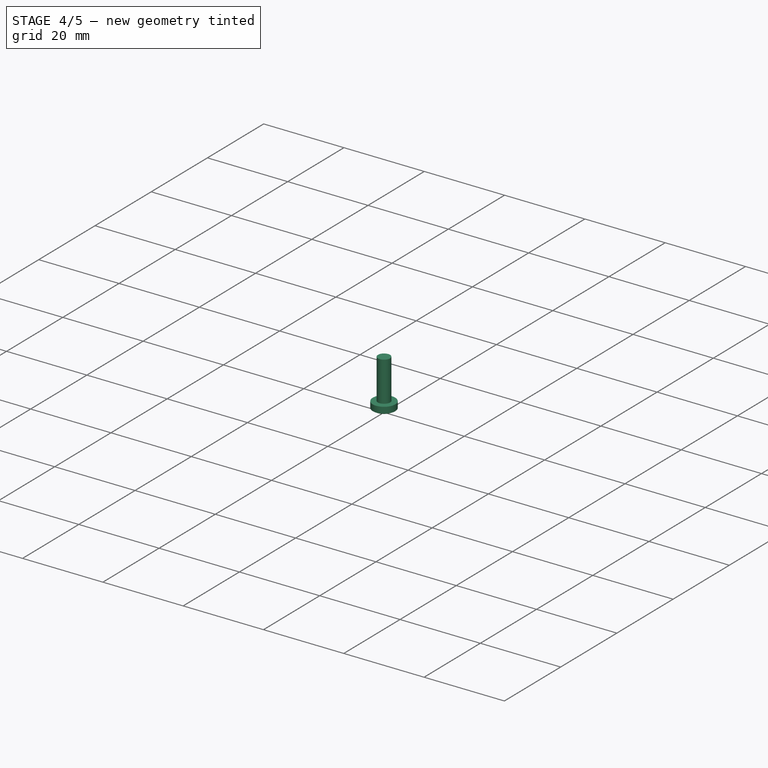
[diagram: stage 4 of 5 — iso view after this stage's code; geometry added in this stage tinted green]
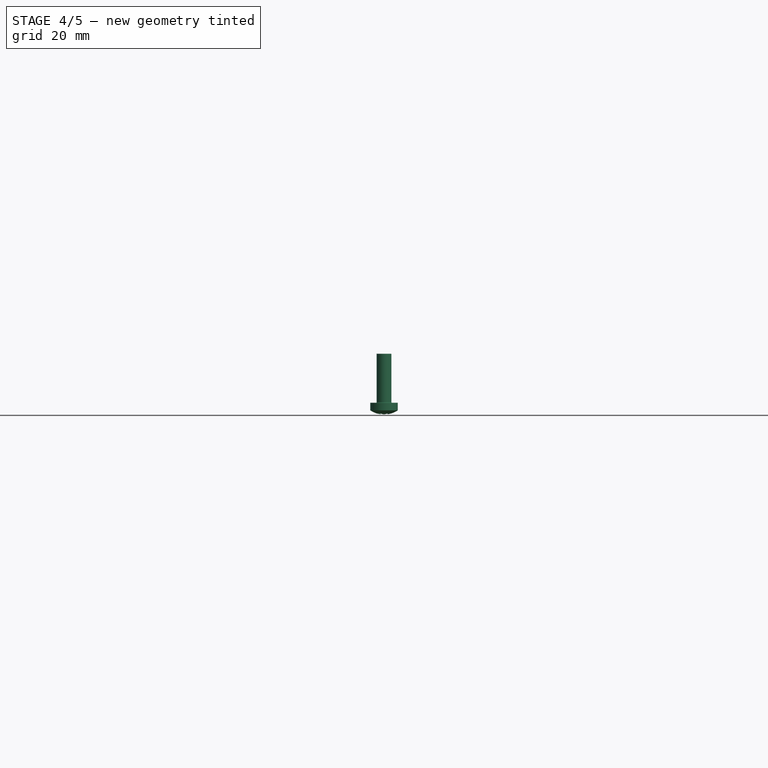
[diagram: stage 4 of 5 — front view after this stage's code; geometry added in this stage tinted green]
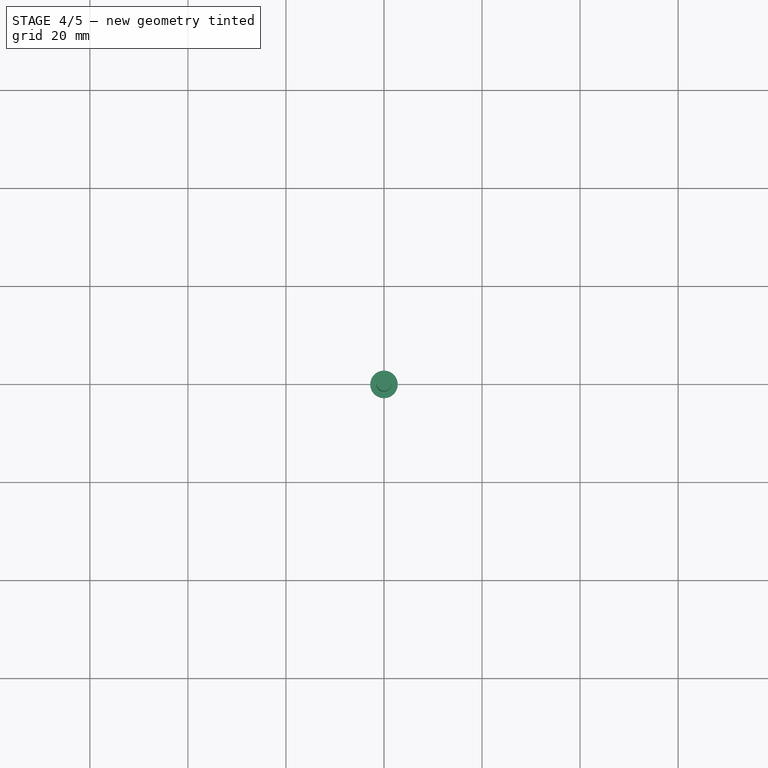
[diagram: stage 4 of 5 — top view after this stage's code; geometry added in this stage tinted green]
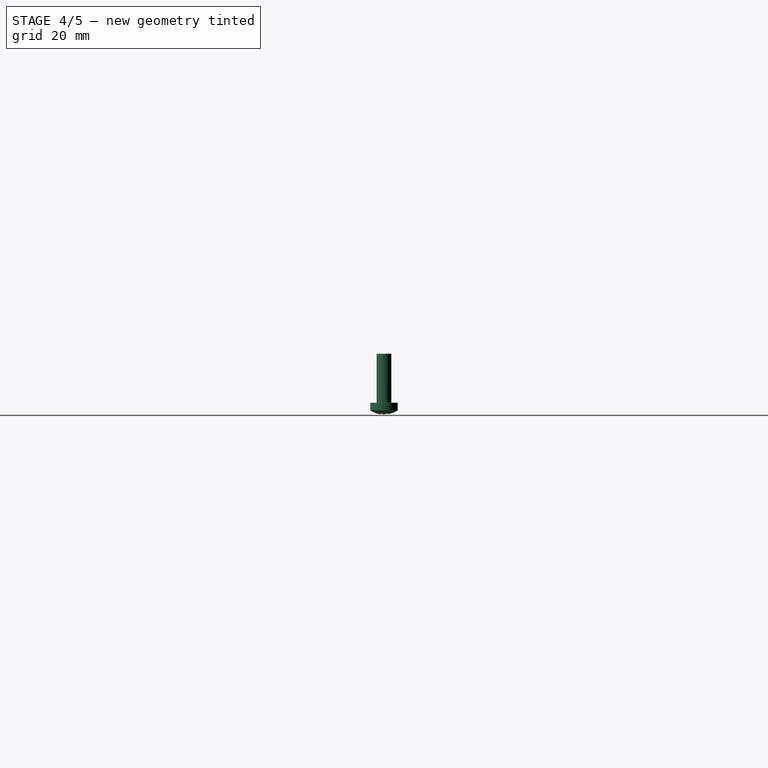
[diagram: stage 4 of 5 — right view after this stage's code; geometry added in this stage tinted green]
FEATURE [PartDesign::Fillet] Fillet001
  Base = -> Pocket008 [Edge51]
  BaseFeature = -> Pocket008
  Radius = 4
  SupportTransform = false
  UseAllEdges = false
FEATURE [PartDesign::Fillet] Fillet002
  Base = -> Fillet001 [Edge57,Edge51]
  BaseFeature = -> Fillet001
  Radius = 3
  SupportTransform = false
  UseAllEdges = false
FEATURE [Sketcher::SketchObject] Sketch024
  ExternalGeometry = -> [ShapeBinder003]
  FullyConstrained = true
  MapMode = 5
  Placement = pos=(0,0,-12) rot=(1,0,0;3.14159rad)
  Support = -> [ShapeBinder003]
  sketch-geometry (2):
    g0: Circle CenterX=60 CenterY=20 CenterZ=0 NormalX=0 NormalY=0 NormalZ=1 AngleXU=0 Radius=1.5
    g1: Circle CenterX=60 CenterY=-20 CenterZ=0 NormalX=0 NormalY=0 NormalZ=1 AngleXU=0 Radius=1.5
  constraints (4):
    c: Coincident(g0,g-3)
    c: Coincident(g1,g-4)
    c: Equal(g0,g1)
    c: Diameter(g0) = 3
FEATURE [Sketcher::SketchObject] Sketch025
  AttachmentOffset = pos=(0,0,3) rot=(0,0,1;0rad)
  ExternalGeometry = -> [ShapeBinder003]
  FullyConstrained = true
  MapMode = 5
  Placement = pos=(0,0,-15) rot=(1,0,0;3.14159rad)
  Support = -> [ShapeBinder003]
  sketch-geometry (1):
    g0: Circle CenterX=60 CenterY=-20 CenterZ=0 NormalX=0 NormalY=0 NormalZ=1 AngleXU=0 Radius=3
  constraints (2):
    c: Coincident(g0,g-4)
    c: Diameter(g0) = 6
FEATURE [PartDesign::Hole] Hole002
  BaseFeature = -> Fillet002
  CustomThreadClearance = 0
  Depth = 186.072
  DepthType = 1
  Diameter = 3.6
  DrillForDepth = false
  DrillPoint = 1
  DrillPointAngle = 118
  HoleCutCountersinkAngle = 90
  HoleCutCustomValues = false
  HoleCutDepth = 0
  HoleCutDiameter = 6.1
  HoleCutType = 0
  ModelThread = false
  Profile = -> Sketch024
  Reversed = true
  Tapered = false
  TaperedAngle = 90
  ThreadClass = 0
  ThreadDepth = 186.072
  ThreadDepthType = 0
  ThreadDirection = 0
  ThreadFit = 2
  ThreadSize = 9
  ThreadType = 1
  Threaded = false
  UseCustomThreadClearance = false
FEATURE [PartDesign::Pocket] Pocket009
  BaseFeature = -> Hole002
  Direction = (0,0,1)
  Length = 5
  Length2 = 5
  Profile = -> Sketch025
  ReferenceAxis = -> Sketch025 [N_Axis]
  Reversed = true
  Type = 1
FEATURE [Sketcher::SketchObject] Sketch026
  ExternalGeometry = -> [ShapeBinder003]
  FullyConstrained = true
  MapMode = 5
  Placement = pos=(0,0,-12) rot=(0,0,1;3.14159rad)
  Support = -> [ShapeBinder003]
  sketch-geometry (18):
    g0: ArcOfCircle CenterX=-62 CenterY=22 CenterZ=0 NormalX=0 NormalY=0 NormalZ=1 AngleXU=0 Radius=7.80577 StartAngle=4.75083 EndAngle=6.24474
    g1: ArcOfCircle CenterX=-62 CenterY=-22 CenterZ=0 NormalX=0 NormalY=0 NormalZ=1 AngleXU=0 Radius=7.80577 StartAngle=0.0384426 EndAngle=1.53235
    g2: LineSegment StartX=-61.7 StartY=14.2 StartZ=0 EndX=-61.7 EndY=-14.2 EndZ=0
    g3: LineSegment StartX=-54.2 StartY=-21.7 StartZ=0 EndX=0 EndY=-21.7 EndZ=0
    g4: LineSegment StartX=0 StartY=-21.7 StartZ=0 EndX=0 EndY=-19.7 EndZ=0
    g5: LineSegment StartX=0 StartY=-19.7 StartZ=0 EndX=-52.4678 EndY=-19.7 EndZ=0
    g6: ArcOfCircle CenterX=-62 CenterY=-22 CenterZ=0 NormalX=0 NormalY=0 NormalZ=1 AngleXU=0 Radius=9.80577 StartAngle=0.236762 EndAngle=1.33403
    g7: LineSegment StartX=-59.7 StartY=-12.4678 StartZ=0 EndX=-59.7 EndY=12.4678 EndZ=0
    g8: ArcOfCircle CenterX=-62 CenterY=22 CenterZ=0 NormalX=0 NormalY=0 NormalZ=1 AngleXU=0 Radius=9.80577 StartAngle=4.94915 EndAngle=6.04642
    g9: LineSegment StartX=-52.4678 StartY=19.7 StartZ=0 EndX=0 EndY=19.7 EndZ=0
    g10: LineSegment StartX=0 StartY=19.7 StartZ=0 EndX=0 EndY=21.7 EndZ=0
    g11: LineSegment StartX=0 StartY=21.7 StartZ=0 EndX=-54.2 EndY=21.7 EndZ=0
    g12: LineSegment StartX=-59.7 StartY=12.4678 StartZ=0 EndX=-61.7 EndY=12.4678 EndZ=0
    g13: LineSegment StartX=-52.4678 StartY=-19.7 StartZ=0 EndX=-54.412 EndY=-20.1691 EndZ=0
    g14: LineSegment StartX=-54.2 StartY=-21.7 StartZ=0 EndX=-54.2 EndY=-22 EndZ=0
    g15: LineSegment StartX=-61.7 StartY=-14.2 StartZ=0 EndX=-62 EndY=-14.2 EndZ=0
    g16: LineSegment StartX=-54.2 StartY=21.7 StartZ=0 EndX=-54.2 EndY=22 EndZ=0
    g17: LineSegment StartX=-54.2 StartY=-22 StartZ=0 EndX=-54.5 EndY=-22 EndZ=0
  constraints (53):
    c: Coincident(g0,g-4)
    c: Coincident(g1,g-6)
    c: Coincident(g2,g0)
    c: Coincident(g2,g1)
    c: Vertical(g2)
    c: Coincident(g3,g1)
    c: PointOnObject(g3,g-2)
    c: Horizontal(g3)
    c: Coincident(g3,g4)
    c: PointOnObject(g4,g-2)
    c: Coincident(g4,g5)
    c: Horizontal(g5)
    c: Coincident(g6,g7)
    c: Vertical(g7)
    c: Coincident(g8,g9)
    c: PointOnObject(g9,g-2)
    c: Horizontal(g9)
    c: Coincident(g9,g10)
    c: PointOnObject(g10,g-2)
    c: Coincident(g10,g11)
    c: Coincident(g11,g0)
    c: Horizontal(g11)
    c: Coincident(g7,g8)
    c: Coincident(g6,g5)
    c: Equal(g10,g4)
    c: Coincident(g12,g7)
    c: PointOnObject(g12,g2)
    c: Horizontal(g12)
    c: Equal(g12,g10)
    c: DistanceY(g4,g4) = 2
    c: Coincident(g8,g0)
    c: Coincident(g6,g1)
    c: Coincident(g13,g5)
    c: PointOnObject(g13,g1)
    c: PointOnObject(g1,g13)
    c: Equal(g13,g4)
    c: Equal(g6,g8)
    c: Equal(g0,g1)
    c: Coincident(g14,g1)
    c: PointOnObject(g14,g-7)
    c: Vertical(g14)
    c: Coincident(g15,g1)
    c: PointOnObject(g15,g-5)
    c: Horizontal(g15)
    c: Coincident(g16,g0)
    c: PointOnObject(g16,g-3)
    c: Vertical(g16)
    c: Equal(g16,g15)
    c: Equal(g15,g14)
    c: DistanceY(g16,g16) = 0.3
    c: Coincident(g17,g14)
    c: Coincident(g17,g-7)
    c: Equal(g17,g14)
FEATURE [PartDesign::Pad] Pad009
  BaseFeature = -> Pocket009
  Direction = (0,0,1)
  Length = 1
  Length2 = 10
  Profile = -> Sketch026
  ReferenceAxis = -> Sketch026 [N_Axis]
  Type = 0
FEATURE [PartDesign::Mirrored] Mirrored001
  BaseFeature = -> Pad009
  MirrorPlane = -> YZ_Plane003
  Originals = -> [Fillet002,Pad005,Pad006,Pocket006,Pad007,Pad008,Pocket007,Pocket008,Fillet001,Pad003]
FEATURE [PartDesign::Mirrored] Mirrored002
  BaseFeature = -> Mirrored001
  MirrorPlane = -> Sketch026 [V_Axis]
  Originals = -> [Pad009,Pocket009,Hole002]
FEATURE [Part::FeaturePython] Screw007  label="M3x10-Screw047"  # Fasteners workbench fastener (typed FeaturePython)
  Placement = pos=(-60,20,-15) rot=(-1,0,0;3.14159rad)
  baseObject = -> Mirrored002 [Edge68]
  diameter = 4
  invert = false
  leftHanded = false
  length = 4
  lengthCustom = 10
  matchOuter = false
  offset = 0
  thread = false
  type = 35
FEATURE [App::DocumentObjectGroup] Group001  label="Screws"
  Group = -> [Screw,Screw001,Screw002,Screw003,Screw004,Screw005,Screw006,Screw007]
FEATURE [Part::Feature] trajectory_line
  shape: bbox 2e-07 x 42.43 x 42.43 mm, 0 faces, 0 solids (baked)
FEATURE [App::DocumentObjectGroupPython] SimpleGroup  # scripted group (container) (typed FeaturePython)
  AnimationStepTime = 0
  AnimationSteps = 20
  Distance = 60
  Group = -> [trajectory_line]
  Revolutions = 0
FEATURE [Part::Feature] trajectory_line001
FEATURE [App::DocumentObjectGroupPython] BoltGroup  # scripted group (container) (typed FeaturePython)
  AnimationStepTime = 0
  AnimationSteps = 20
  Distance = 20
  Group = -> [trajectory_line001]
  Revolutions = 0
FEATURE [App::DocumentObjectGroupPython] ExplodedAssembly  # scripted group (container) (typed FeaturePython)
  AnimationStep = 0
  CurrentTrajectory = 0
  Group = -> [SimpleGroup,BoltGroup]
  InAnimation = false
  RemoveAllTrajectories = false
  ResetAnimation = false
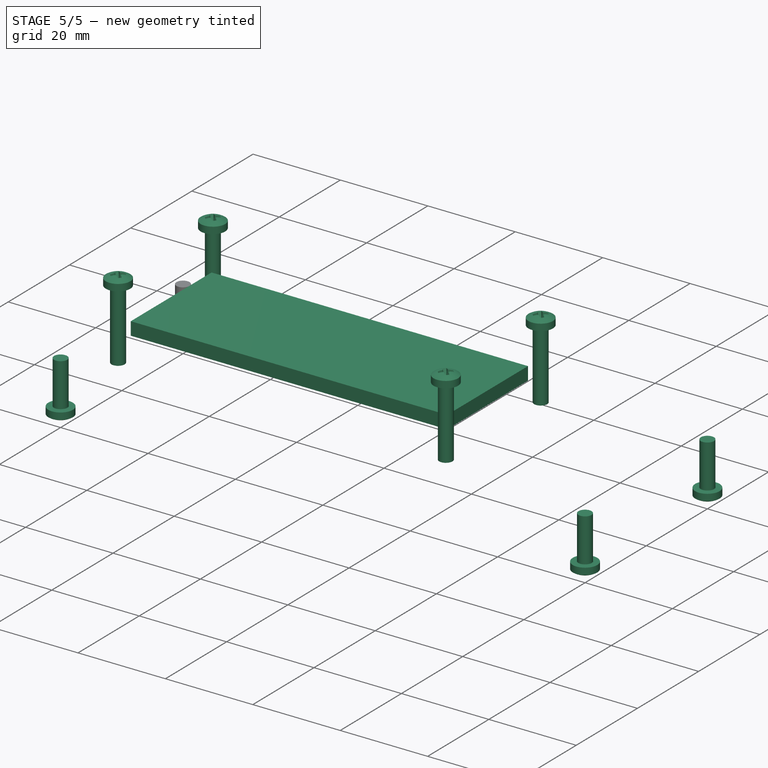
[diagram: stage 5 of 5 — iso view after this stage's code; geometry added in this stage tinted green]
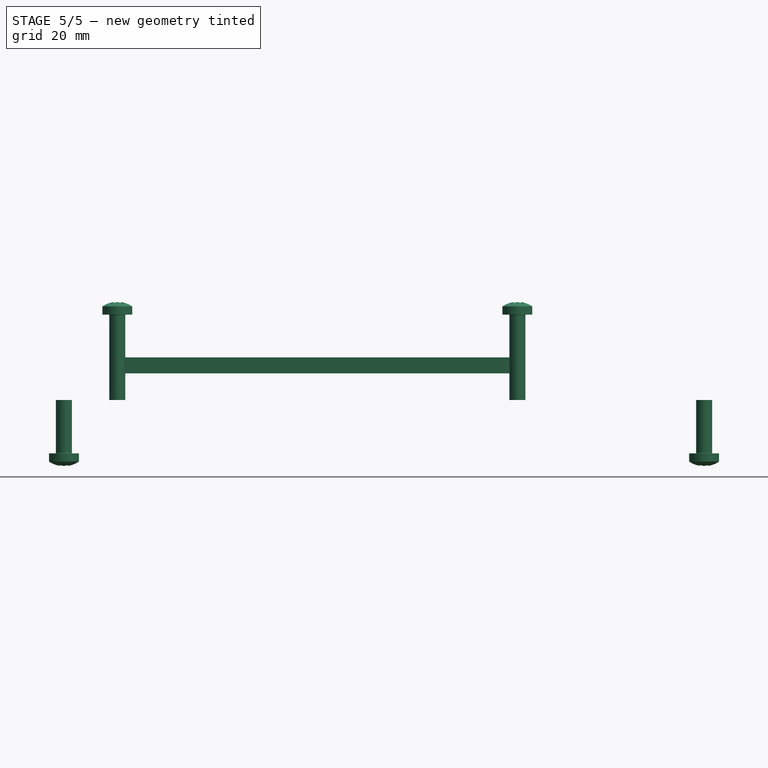
[diagram: stage 5 of 5 — front view after this stage's code; geometry added in this stage tinted green]
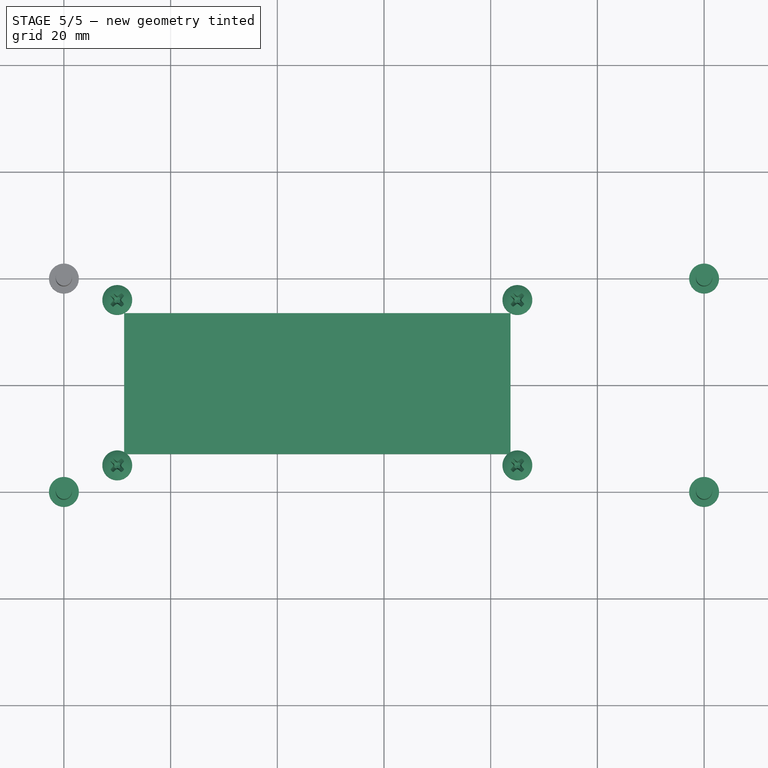
[diagram: stage 5 of 5 — top view after this stage's code; geometry added in this stage tinted green]
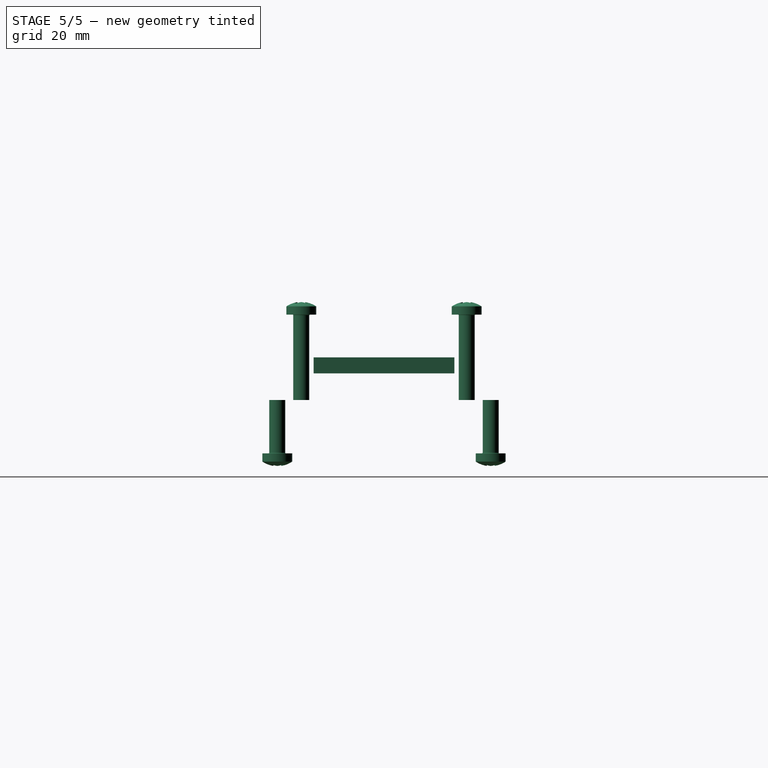
[diagram: stage 5 of 5 — right view after this stage's code; geometry added in this stage tinted green]
FEATURE [PartDesign::ShapeBinder] ShapeBinder001
  Support = -> [Pocket001]
  TraceSupport = false
FEATURE [Sketcher::SketchObject] Sketch006
  ExternalGeometry = -> [ShapeBinder001]
  FullyConstrained = true
  MapMode = 5
  Support = -> [XY_Plane002]
  sketch-geometry (8):
    g0: LineSegment StartX=-48.7 StartY=13.2 StartZ=0 EndX=23.7 EndY=13.2 EndZ=0
    g1: LineSegment StartX=23.7 StartY=13.2 StartZ=0 EndX=23.7 EndY=-13.2 EndZ=0
    g2: LineSegment StartX=23.7 StartY=-13.2 StartZ=0 EndX=-48.7 EndY=-13.2 EndZ=0
    g3: LineSegment StartX=-48.7 StartY=-13.2 StartZ=0 EndX=-48.7 EndY=13.2 EndZ=0
    g4: LineSegment StartX=-48.7 StartY=13.2 StartZ=0 EndX=-49 EndY=13.2 EndZ=0
    g5: LineSegment StartX=-48.7 StartY=13.2 StartZ=0 EndX=-48.7 EndY=13.5 EndZ=0
    g6: LineSegment StartX=23.7 StartY=-13.2 StartZ=0 EndX=23.7 EndY=-13.5 EndZ=0
    g7: LineSegment StartX=23.7 StartY=-13.2 StartZ=0 EndX=24 EndY=-13.2 EndZ=0
  constraints (24):
    c: Coincident(g0,g1)
    c: Coincident(g1,g2)
    c: Coincident(g2,g3)
    c: Coincident(g3,g0)
    c: Horizontal(g0)
    c: Horizontal(g2)
    c: Vertical(g1)
    c: Vertical(g3)
    c: Coincident(g4,g0)
    c: PointOnObject(g4,g-4)
    c: Horizontal(g4)
    c: Coincident(g5,g0)
    c: PointOnObject(g5,g-3)
    c: Vertical(g5)
    c: Coincident(g6,g1)
    c: PointOnObject(g6,g-5)
    c: Vertical(g6)
    c: Coincident(g7,g1)
    c: PointOnObject(g7,g-6)
    c: Horizontal(g7)
    c: Equal(g4,g5)
    c: Equal(g6,g7)
    c: DistanceY(g5,g5) = 0.3
    c: Equal(g6,g5)
FEATURE [PartDesign::Pad] Pad
  Direction = (0,0,1)
  Length = 3
  Length2 = 10
  Profile = -> Sketch006
  ReferenceAxis = -> Sketch006 [N_Axis]
  Type = 0
FEATURE [Part::FeaturePython] Screw  label="M3x16-Screw097"  # Fasteners workbench fastener (typed FeaturePython)
  Placement = pos=(25,15.5,11) rot=(0,0,1;0rad)
  baseObject = -> Hole [Edge29]
  diameter = 4
  invert = false
  leftHanded = false
  length = 7
  lengthCustom = 16
  matchOuter = false
  offset = 0
  thread = false
  type = 35
FEATURE [Part::FeaturePython] Screw001  label="M3x16-Screw110"  # Fasteners workbench fastener (typed FeaturePython)
  Placement = pos=(25,-15.5,11) rot=(0,0,1;0rad)
  baseObject = -> Chamfer [Edge10]
  diameter = 4
  invert = false
  leftHanded = false
  length = 7
  lengthCustom = 16
  matchOuter = false
  offset = 0
  thread = false
  type = 35
FEATURE [Part::FeaturePython] Screw002  label="M3x16-Screw"  # Fasteners workbench fastener (typed FeaturePython)
  Placement = pos=(-50,-15.5,11) rot=(0,0,1;0rad)
  baseObject = -> Hole [Edge21]
  diameter = 4
  invert = false
  leftHanded = false
  length = 7
  lengthCustom = 16
  matchOuter = false
  offset = 0
  thread = false
  type = 35
FEATURE [Part::FeaturePython] Screw003  label="M3x16-Screw109"  # Fasteners workbench fastener (typed FeaturePython)
  Placement = pos=(-50,15.5,11) rot=(0,0,1;0rad)
  baseObject = -> Chamfer [Edge11]
  diameter = 4
  invert = false
  leftHanded = false
  length = 7
  lengthCustom = 16
  matchOuter = false
  offset = 0
  thread = false
  type = 35
FEATURE [PartDesign::Body] Body003  label="Base"
  Group = -> [ShapeBinder003,Sketch014,Pad003,ShapeBinder004,ShapeBinder005,Sketch017,Pad005,Sketch018,Pad006,Sketch019,Pocket006,Sketch020,Pad007,Sketch021,Pad008,Sketch022,Pocket007,Sketch023,Pocket008,Fillet001,Fillet002,Sketch024,Sketch025,Hole002,Pocket009,Sketch026,Pad009,Mirrored001,Mirrored002]
  Origin = -> Origin003
  Tip = -> Mirrored002
FEATURE [Part::FeaturePython] Screw004  label="M3x10-Screw"  # Fasteners workbench fastener (typed FeaturePython)
  Placement = pos=(-60,-20,-15) rot=(-1,0,0;3.14159rad)
  baseObject = -> Body003 [Edge25]
  diameter = 4
  invert = false
  leftHanded = false
  length = 4
  lengthCustom = 10
  matchOuter = false
  offset = 0
  thread = false
  type = 35
FEATURE [Part::FeaturePython] Screw005  label="M3x10-Screw045"  # Fasteners workbench fastener (typed FeaturePython)
  Placement = pos=(60,-20,-15) rot=(-1,0,0;3.14159rad)
  baseObject = -> Mirrored002 [Edge129]
  diameter = 4
  invert = false
  leftHanded = false
  length = 4
  lengthCustom = 10
  matchOuter = false
  offset = 0
  thread = false
  type = 35
FEATURE [Part::FeaturePython] Screw006  label="M3x10-Screw046"  # Fasteners workbench fastener (typed FeaturePython)
  Placement = pos=(60,20,-15) rot=(-1,0,0;3.14159rad)
  baseObject = -> Mirrored002 [Edge131]
  diameter = 4
  invert = false
  leftHanded = false
  length = 4
  lengthCustom = 10
  matchOuter = false
  offset = 0
  thread = false
  type = 35
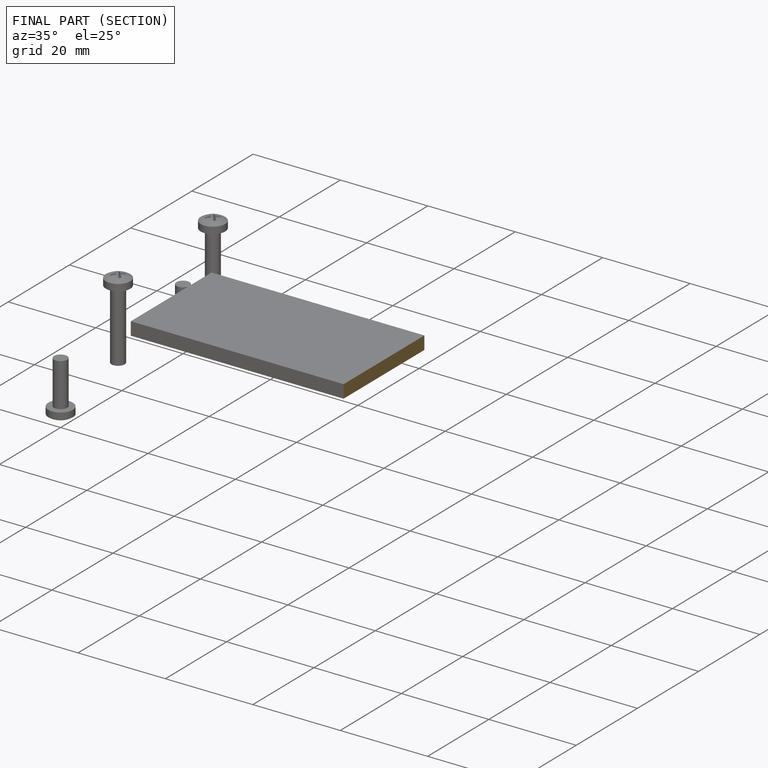
[diagram: finished part — half-section view (interior)]
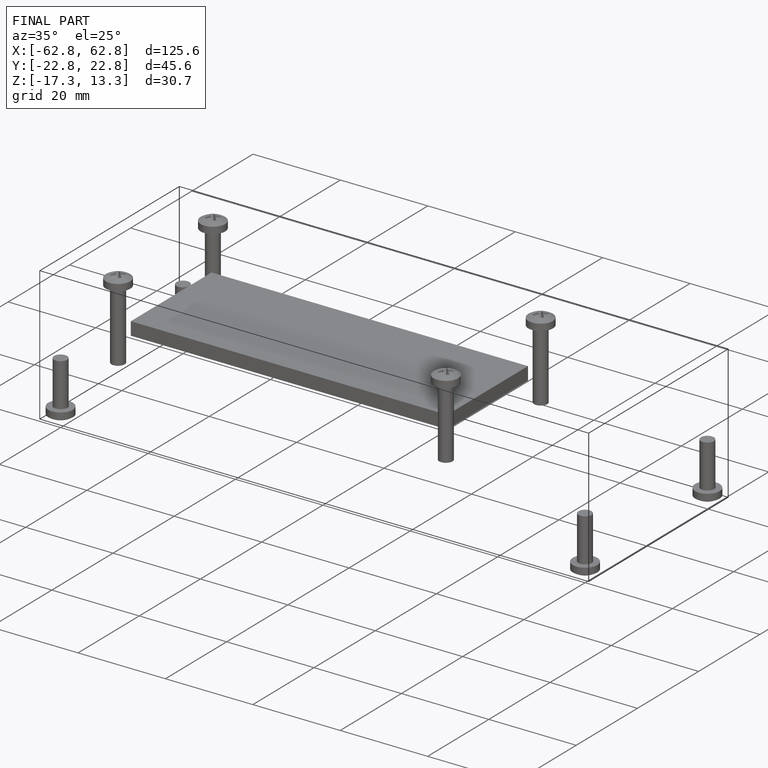
[diagram: finished part — iso view with bounding-box wireframe]
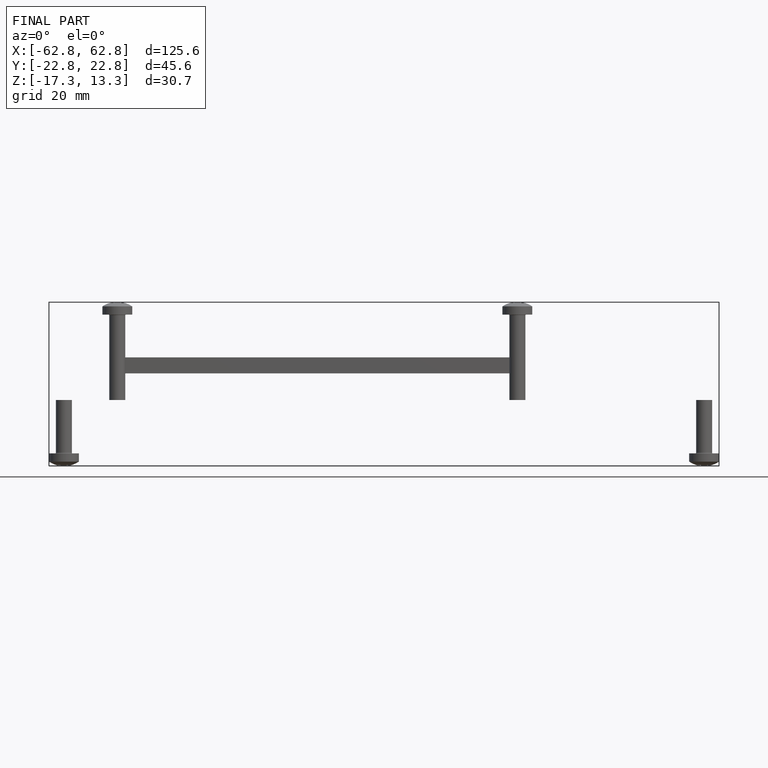
[diagram: finished part — front view with bounding-box wireframe]
